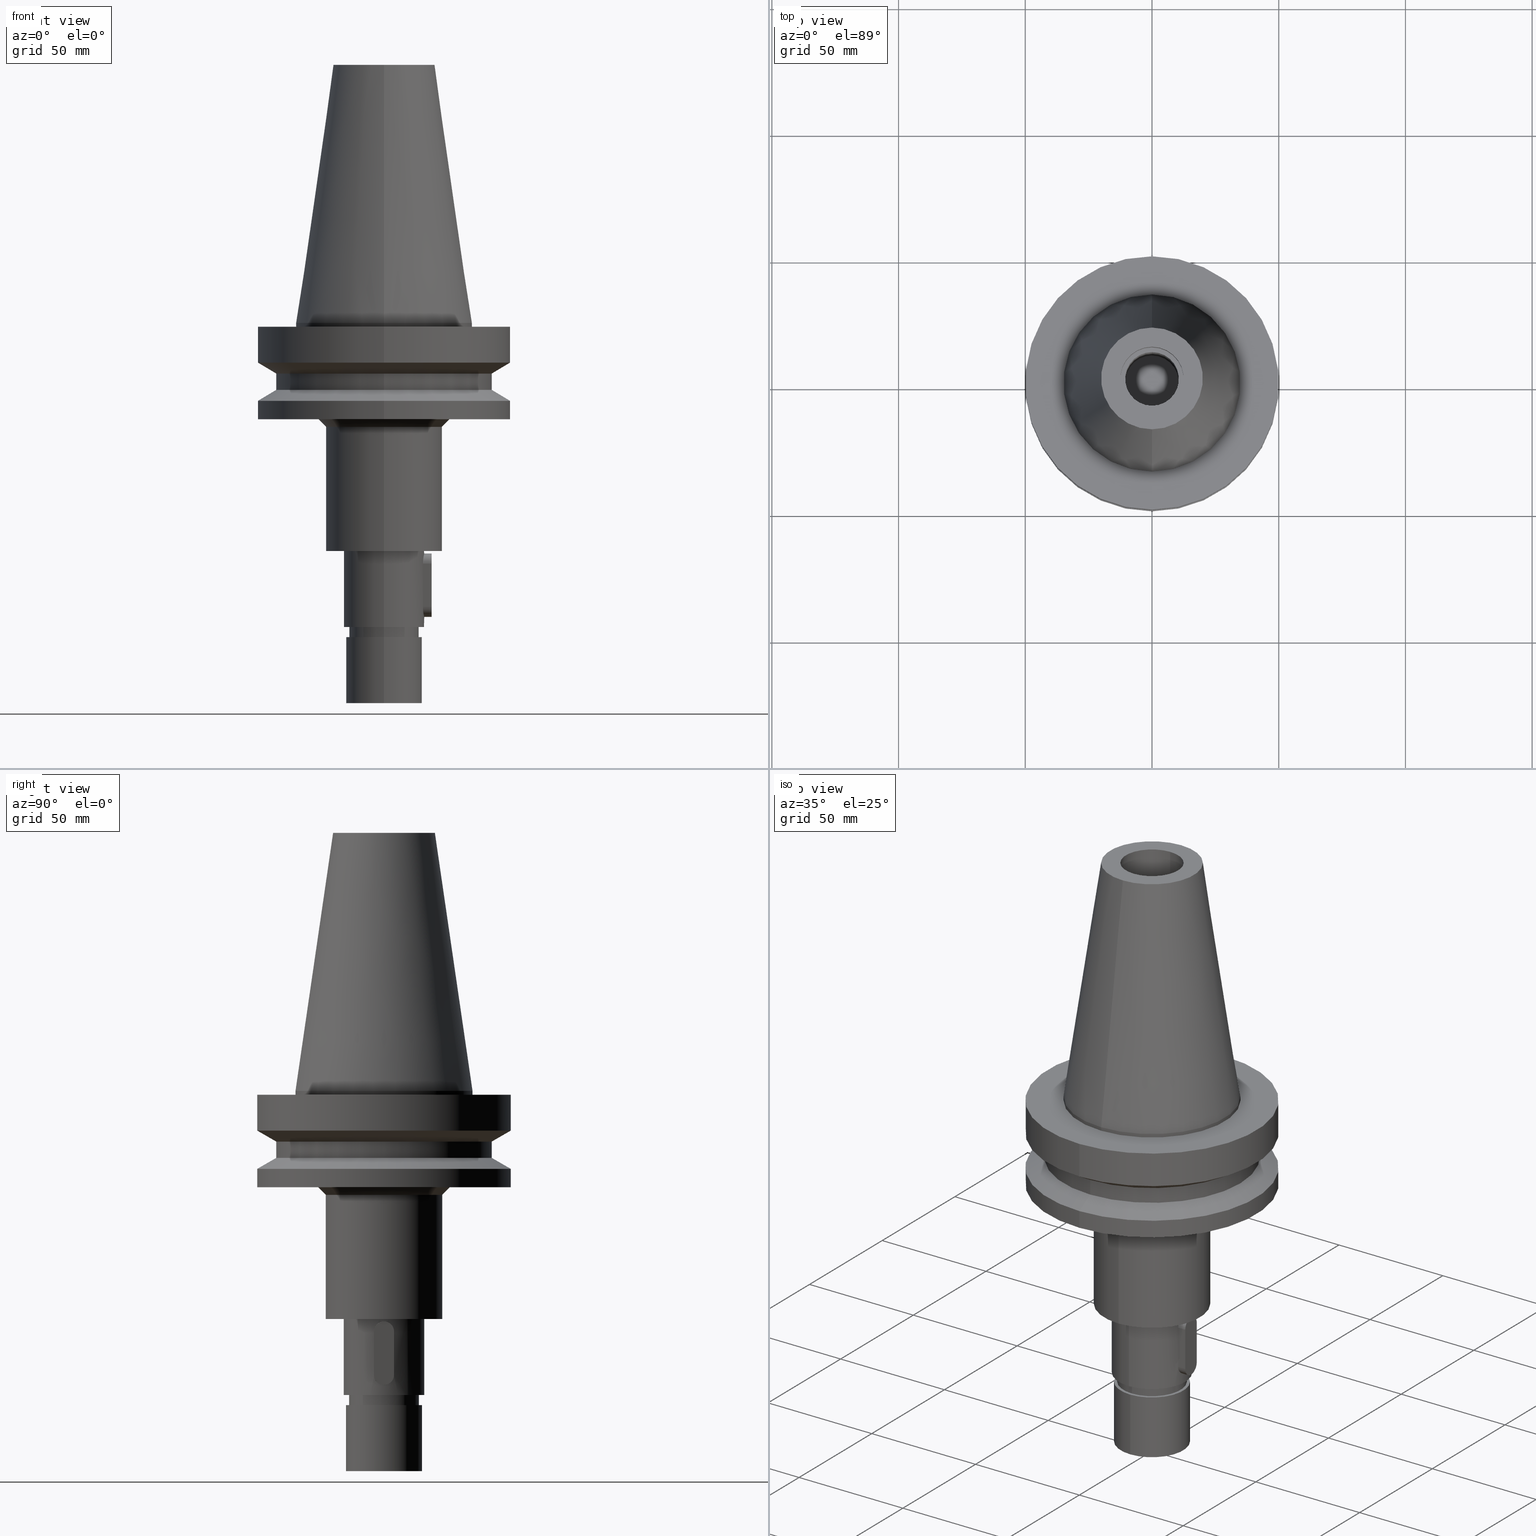
[diagram: canonical four-view strip — front | top / right | iso, engineering-drawing reading convention]
A machine part, canonical four-view strip (front | top / right | iso — engineering-drawing reading convention). The complete STEP part file that produces these views, byte-faithful:
ISO-10303-21;
HEADER;
FILE_DESCRIPTION((''),'2;1');
FILE_NAME('BBT50-SCA31_75-90','2018-09-05T',('ykawabe'),(''),
'CREO PARAMETRIC BY PTC INC, 2016380','CREO PARAMETRIC BY PTC INC, 2016380','');
FILE_SCHEMA(('AUTOMOTIVE_DESIGN { 1 0 10303 214 1 1 1 1 }'));
ENDSEC;
DATA;
#17=DIRECTION('',(0.E0,0.E0,1.E0));
#18=VECTOR('',#17,1.3E1);
#19=CARTESIAN_POINT('',(0.E0,1.25E1,8.88E1));
#20=LINE('',#19,#18);
#21=DRAUGHTING_PRE_DEFINED_CURVE_FONT('continuous');
#22=CURVE_STYLE('',#21,POSITIVE_LENGTH_MEASURE(2.E-2),#4);
#23=PRESENTATION_STYLE_ASSIGNMENT((#22));
#24=STYLED_ITEM('',(#23),#20);
#25=DIRECTION('',(0.E0,0.E0,1.E0));
#26=VECTOR('',#25,1.3E1);
#27=CARTESIAN_POINT('',(0.E0,-1.25E1,8.88E1));
#28=LINE('',#27,#26);
#29=CURVE_STYLE('',#21,POSITIVE_LENGTH_MEASURE(2.E-2),#4);
#30=PRESENTATION_STYLE_ASSIGNMENT((#29));
#31=STYLED_ITEM('',(#30),#28);
#32=CARTESIAN_POINT('',(0.E0,2.625520272692E-14,8.88E1));
#33=DIRECTION('',(0.E0,0.E0,-1.E0));
#34=DIRECTION('',(0.E0,-1.E0,0.E0));
#35=AXIS2_PLACEMENT_3D('',#32,#33,#34);
#37=CURVE_STYLE('',#21,POSITIVE_LENGTH_MEASURE(2.E-2),#4);
#38=PRESENTATION_STYLE_ASSIGNMENT((#37));
#39=STYLED_ITEM('',(#38),#36);
#40=CARTESIAN_POINT('',(0.E0,2.625520272692E-14,8.88E1));
#41=DIRECTION('',(0.E0,0.E0,-1.E0));
#42=DIRECTION('',(0.E0,1.E0,0.E0));
#43=AXIS2_PLACEMENT_3D('',#40,#41,#42);
#45=CURVE_STYLE('',#21,POSITIVE_LENGTH_MEASURE(2.E-2),#4);
#46=PRESENTATION_STYLE_ASSIGNMENT((#45));
#47=STYLED_ITEM('',(#46),#44);
#48=CARTESIAN_POINT('',(0.E0,2.625520272692E-14,8.88E1));
#49=DIRECTION('',(0.E0,0.E0,1.E0));
#50=DIRECTION('',(0.E0,-1.E0,0.E0));
#51=AXIS2_PLACEMENT_3D('',#48,#49,#50);
#53=CURVE_STYLE('',#21,POSITIVE_LENGTH_MEASURE(2.E-2),#4);
#54=PRESENTATION_STYLE_ASSIGNMENT((#53));
#55=STYLED_ITEM('',(#54),#52);
#56=CARTESIAN_POINT('',(0.E0,2.625520272692E-14,8.88E1));
#57=DIRECTION('',(0.E0,0.E0,1.E0));
#58=DIRECTION('',(0.E0,1.E0,0.E0));
#59=AXIS2_PLACEMENT_3D('',#56,#57,#58);
#61=CURVE_STYLE('',#21,POSITIVE_LENGTH_MEASURE(2.E-2),#4);
#62=PRESENTATION_STYLE_ASSIGNMENT((#61));
#63=STYLED_ITEM('',(#62),#60);
#64=DIRECTION('',(0.E0,0.E0,1.E0));
#65=VECTOR('',#64,7.7E1);
#66=CARTESIAN_POINT('',(0.E0,1.06E1,1.18E1));
#67=LINE('',#66,#65);
#68=CURVE_STYLE('',#21,POSITIVE_LENGTH_MEASURE(2.E-2),#4);
#69=PRESENTATION_STYLE_ASSIGNMENT((#68));
#70=STYLED_ITEM('',(#69),#67);
#71=DIRECTION('',(0.E0,0.E0,1.E0));
#72=VECTOR('',#71,7.7E1);
#73=CARTESIAN_POINT('',(0.E0,-1.06E1,1.18E1));
#74=LINE('',#73,#72);
#75=CURVE_STYLE('',#21,POSITIVE_LENGTH_MEASURE(2.E-2),#4);
#76=PRESENTATION_STYLE_ASSIGNMENT((#75));
#77=STYLED_ITEM('',(#76),#74);
#78=CARTESIAN_POINT('',(0.E0,2.625520272692E-14,1.18E1));
#79=DIRECTION('',(0.E0,0.E0,-1.E0));
#80=DIRECTION('',(0.E0,-1.E0,0.E0));
#81=AXIS2_PLACEMENT_3D('',#78,#79,#80);
#83=CURVE_STYLE('',#21,POSITIVE_LENGTH_MEASURE(2.E-2),#4);
#84=PRESENTATION_STYLE_ASSIGNMENT((#83));
#85=STYLED_ITEM('',(#84),#82);
#86=CARTESIAN_POINT('',(0.E0,2.625520272692E-14,1.18E1));
#87=DIRECTION('',(0.E0,0.E0,-1.E0));
#88=DIRECTION('',(0.E0,1.E0,0.E0));
#89=AXIS2_PLACEMENT_3D('',#86,#87,#88);
#91=CURVE_STYLE('',#21,POSITIVE_LENGTH_MEASURE(2.E-2),#4);
#92=PRESENTATION_STYLE_ASSIGNMENT((#91));
#93=STYLED_ITEM('',(#92),#90);
#94=CARTESIAN_POINT('',(0.E0,1.847992019913E-14,1.018E2));
#95=DIRECTION('',(0.E0,0.E0,-1.E0));
#96=DIRECTION('',(0.E0,1.E0,0.E0));
#97=AXIS2_PLACEMENT_3D('',#94,#95,#96);
#99=CURVE_STYLE('',#21,POSITIVE_LENGTH_MEASURE(2.E-2),#4);
#100=PRESENTATION_STYLE_ASSIGNMENT((#99));
#101=STYLED_ITEM('',(#100),#98);
#102=CARTESIAN_POINT('',(0.E0,1.847992019913E-14,1.018E2));
#103=DIRECTION('',(0.E0,0.E0,-1.E0));
#104=DIRECTION('',(0.E0,-1.E0,0.E0));
#105=AXIS2_PLACEMENT_3D('',#102,#103,#104);
#107=CURVE_STYLE('',#21,POSITIVE_LENGTH_MEASURE(2.E-2),#4);
#108=PRESENTATION_STYLE_ASSIGNMENT((#107));
#109=STYLED_ITEM('',(#108),#106);
#110=CARTESIAN_POINT('',(0.E0,2.625520272692E-14,1.018E2));
#111=DIRECTION('',(0.E0,0.E0,1.E0));
#112=DIRECTION('',(0.E0,1.E0,0.E0));
#113=AXIS2_PLACEMENT_3D('',#110,#111,#112);
#115=CURVE_STYLE('',#21,POSITIVE_LENGTH_MEASURE(2.E-2),#4);
#116=PRESENTATION_STYLE_ASSIGNMENT((#115));
#117=STYLED_ITEM('',(#116),#114);
#118=CARTESIAN_POINT('',(0.E0,2.625520272692E-14,1.018E2));
#119=DIRECTION('',(0.E0,0.E0,1.E0));
#120=DIRECTION('',(0.E0,-1.E0,0.E0));
#121=AXIS2_PLACEMENT_3D('',#118,#119,#120);
#123=CURVE_STYLE('',#21,POSITIVE_LENGTH_MEASURE(2.E-2),#4);
#124=PRESENTATION_STYLE_ASSIGNMENT((#123));
#125=STYLED_ITEM('',(#124),#122);
#126=DIRECTION('',(0.E0,1.443043893539E-1,-9.895333461856E-1));
#127=VECTOR('',#126,1.028767755957E2);
#128=CARTESIAN_POINT('',(0.E0,2.007942971896E1,1.018E2));
#129=LINE('',#128,#127);
#130=CURVE_STYLE('',#21,POSITIVE_LENGTH_MEASURE(2.E-2),#4);
#131=PRESENTATION_STYLE_ASSIGNMENT((#130));
#132=STYLED_ITEM('',(#131),#129);
#133=CARTESIAN_POINT('',(0.E0,1.847992019913E-14,3.979039320257E-13));
#134=DIRECTION('',(0.E0,0.E0,-1.E0));
#135=DIRECTION('',(0.E0,1.E0,0.E0));
#136=AXIS2_PLACEMENT_3D('',#133,#134,#135);
#138=CURVE_STYLE('',#21,POSITIVE_LENGTH_MEASURE(2.E-2),#4);
#139=PRESENTATION_STYLE_ASSIGNMENT((#138));
#140=STYLED_ITEM('',(#139),#137);
#141=DIRECTION('',(0.E0,-1.443043893539E-1,-9.895333461856E-1));
#142=VECTOR('',#141,1.028767755957E2);
#143=CARTESIAN_POINT('',(0.E0,-2.007942971896E1,1.018E2));
#144=LINE('',#143,#142);
#145=CURVE_STYLE('',#21,POSITIVE_LENGTH_MEASURE(2.E-2),#4);
#146=PRESENTATION_STYLE_ASSIGNMENT((#145));
#147=STYLED_ITEM('',(#146),#144);
#148=CARTESIAN_POINT('',(0.E0,1.847992019913E-14,3.979039320257E-13));
#149=DIRECTION('',(0.E0,0.E0,-1.E0));
#150=DIRECTION('',(0.E0,-1.E0,0.E0));
#151=AXIS2_PLACEMENT_3D('',#148,#149,#150);
#153=CURVE_STYLE('',#21,POSITIVE_LENGTH_MEASURE(2.E-2),#4);
#154=PRESENTATION_STYLE_ASSIGNMENT((#153));
#155=STYLED_ITEM('',(#154),#152);
#156=DIRECTION('',(0.E0,4.215886898842E-13,-1.E0));
#157=VECTOR('',#156,1.5E0);
#158=CARTESIAN_POINT('',(0.E0,-3.4925E1,4.831690603169E-13));
#159=LINE('',#158,#157);
#160=CURVE_STYLE('',#21,POSITIVE_LENGTH_MEASURE(2.E-2),#4);
#161=PRESENTATION_STYLE_ASSIGNMENT((#160));
#162=STYLED_ITEM('',(#161),#159);
#163=DIRECTION('',(0.E0,-4.263256414559E-13,-1.E0));
#164=VECTOR('',#163,1.5E0);
#165=CARTESIAN_POINT('',(0.E0,3.4925E1,4.831690603169E-13));
#166=LINE('',#165,#164);
#167=CURVE_STYLE('',#21,POSITIVE_LENGTH_MEASURE(2.E-2),#4);
#168=PRESENTATION_STYLE_ASSIGNMENT((#167));
#169=STYLED_ITEM('',(#168),#166);
#170=CARTESIAN_POINT('',(0.E0,2.625520272692E-14,-1.5E0));
#171=DIRECTION('',(0.E0,0.E0,-1.E0));
#172=DIRECTION('',(0.E0,1.E0,0.E0));
#173=AXIS2_PLACEMENT_3D('',#170,#171,#172);
#175=CURVE_STYLE('',#21,POSITIVE_LENGTH_MEASURE(2.E-2),#4);
#176=PRESENTATION_STYLE_ASSIGNMENT((#175));
#177=STYLED_ITEM('',(#176),#174);
#178=CARTESIAN_POINT('',(0.E0,2.625520272692E-14,-1.5E0));
#179=DIRECTION('',(0.E0,0.E0,-1.E0));
#180=DIRECTION('',(0.E0,-1.E0,0.E0));
#181=AXIS2_PLACEMENT_3D('',#178,#179,#180);
#183=CURVE_STYLE('',#21,POSITIVE_LENGTH_MEASURE(2.E-2),#4);
#184=PRESENTATION_STYLE_ASSIGNMENT((#183));
#185=STYLED_ITEM('',(#184),#182);
#186=CARTESIAN_POINT('',(0.E0,2.625520272692E-14,-1.5E0));
#187=DIRECTION('',(0.E0,0.E0,1.E0));
#188=DIRECTION('',(0.E0,1.E0,0.E0));
#189=AXIS2_PLACEMENT_3D('',#186,#187,#188);
#191=CURVE_STYLE('',#21,POSITIVE_LENGTH_MEASURE(2.E-2),#4);
#192=PRESENTATION_STYLE_ASSIGNMENT((#191));
#193=STYLED_ITEM('',(#192),#190);
#194=CARTESIAN_POINT('',(0.E0,2.625520272692E-14,-1.5E0));
#195=DIRECTION('',(0.E0,0.E0,1.E0));
#196=DIRECTION('',(0.E0,-1.E0,0.E0));
#197=AXIS2_PLACEMENT_3D('',#194,#195,#196);
#199=CURVE_STYLE('',#21,POSITIVE_LENGTH_MEASURE(2.E-2),#4);
#200=PRESENTATION_STYLE_ASSIGNMENT((#199));
#201=STYLED_ITEM('',(#200),#198);
#202=DIRECTION('',(0.E0,-1.605441053570E-14,-1.E0));
#203=VECTOR('',#202,1.416269223573E1);
#204=CARTESIAN_POINT('',(0.E0,5.E1,-1.5E0));
#205=LINE('',#204,#203);
#206=CURVE_STYLE('',#21,POSITIVE_LENGTH_MEASURE(2.E-2),#4);
#207=PRESENTATION_STYLE_ASSIGNMENT((#206));
#208=STYLED_ITEM('',(#207),#205);
#209=DIRECTION('',(0.E0,1.655611086494E-14,-1.E0));
#210=VECTOR('',#209,1.416269223573E1);
#211=CARTESIAN_POINT('',(0.E0,-5.E1,-1.5E0));
#212=LINE('',#211,#210);
#213=CURVE_STYLE('',#21,POSITIVE_LENGTH_MEASURE(2.E-2),#4);
#214=PRESENTATION_STYLE_ASSIGNMENT((#213));
#215=STYLED_ITEM('',(#214),#212);
#216=CARTESIAN_POINT('',(0.E0,1.006319759054E-14,-1.566269223573E1));
#217=DIRECTION('',(0.E0,0.E0,1.E0));
#218=DIRECTION('',(0.E0,1.E0,0.E0));
#219=AXIS2_PLACEMENT_3D('',#216,#217,#218);
#221=CURVE_STYLE('',#21,POSITIVE_LENGTH_MEASURE(2.E-2),#4);
#222=PRESENTATION_STYLE_ASSIGNMENT((#221));
#223=STYLED_ITEM('',(#222),#220);
#224=DIRECTION('',(0.E0,8.660254037845E-1,-4.999999999999E-1));
#225=VECTOR('',#224,8.660254037843E0);
#226=CARTESIAN_POINT('',(0.E0,-5.E1,-1.566269223573E1));
#227=LINE('',#226,#225);
#228=CURVE_STYLE('',#21,POSITIVE_LENGTH_MEASURE(2.E-2),#4);
#229=PRESENTATION_STYLE_ASSIGNMENT((#228));
#230=STYLED_ITEM('',(#229),#227);
#231=CARTESIAN_POINT('',(0.E0,1.006319759054E-14,-1.999281925465E1));
#232=DIRECTION('',(0.E0,0.E0,-1.E0));
#233=DIRECTION('',(0.E0,-1.E0,0.E0));
#234=AXIS2_PLACEMENT_3D('',#231,#232,#233);
#236=CURVE_STYLE('',#21,POSITIVE_LENGTH_MEASURE(2.E-2),#4);
#237=PRESENTATION_STYLE_ASSIGNMENT((#236));
#238=STYLED_ITEM('',(#237),#235);
#239=DIRECTION('',(0.E0,-8.660254037845E-1,-4.999999999999E-1));
#240=VECTOR('',#239,8.660254037843E0);
#241=CARTESIAN_POINT('',(0.E0,5.E1,-1.566269223573E1));
#242=LINE('',#241,#240);
#243=CURVE_STYLE('',#21,POSITIVE_LENGTH_MEASURE(2.E-2),#4);
#244=PRESENTATION_STYLE_ASSIGNMENT((#243));
#245=STYLED_ITEM('',(#244),#242);
#246=CARTESIAN_POINT('',(0.E0,1.006319759054E-14,-1.999281925465E1));
#247=DIRECTION('',(0.E0,0.E0,-1.E0));
#248=DIRECTION('',(0.E0,1.E0,0.E0));
#249=AXIS2_PLACEMENT_3D('',#246,#247,#248);
#251=CURVE_STYLE('',#21,POSITIVE_LENGTH_MEASURE(2.E-2),#4);
#252=PRESENTATION_STYLE_ASSIGNMENT((#251));
#253=STYLED_ITEM('',(#252),#250);
#254=CARTESIAN_POINT('',(0.E0,1.006319759054E-14,-1.566269223573E1));
#255=DIRECTION('',(0.E0,0.E0,1.E0));
#256=DIRECTION('',(0.E0,-1.E0,0.E0));
#257=AXIS2_PLACEMENT_3D('',#254,#255,#256);
#259=CURVE_STYLE('',#21,POSITIVE_LENGTH_MEASURE(2.E-2),#4);
#260=PRESENTATION_STYLE_ASSIGNMENT((#259));
#261=STYLED_ITEM('',(#260),#258);
#262=DIRECTION('',(0.E0,0.E0,-1.E0));
#263=VECTOR('',#262,6.414361490699E0);
#264=CARTESIAN_POINT('',(0.E0,4.25E1,-1.999281925465E1));
#265=LINE('',#264,#263);
#266=CURVE_STYLE('',#21,POSITIVE_LENGTH_MEASURE(2.E-2),#4);
#267=PRESENTATION_STYLE_ASSIGNMENT((#266));
#268=STYLED_ITEM('',(#267),#265);
#269=DIRECTION('',(0.E0,0.E0,-1.E0));
#270=VECTOR('',#269,6.414361490699E0);
#271=CARTESIAN_POINT('',(0.E0,-4.25E1,-1.999281925465E1));
#272=LINE('',#271,#270);
#273=CURVE_STYLE('',#21,POSITIVE_LENGTH_MEASURE(2.E-2),#4);
#274=PRESENTATION_STYLE_ASSIGNMENT((#273));
#275=STYLED_ITEM('',(#274),#272);
#276=CARTESIAN_POINT('',(0.E0,0.E0,-2.640718074535E1));
#277=DIRECTION('',(0.E0,0.E0,1.E0));
#278=DIRECTION('',(0.E0,1.E0,0.E0));
#279=AXIS2_PLACEMENT_3D('',#276,#277,#278);
#281=CURVE_STYLE('',#21,POSITIVE_LENGTH_MEASURE(2.E-2),#4);
#282=PRESENTATION_STYLE_ASSIGNMENT((#281));
#283=STYLED_ITEM('',(#282),#280);
#284=DIRECTION('',(0.E0,-8.660254037845E-1,-4.999999999999E-1));
#285=VECTOR('',#284,8.660254037843E0);
#286=CARTESIAN_POINT('',(0.E0,-4.25E1,-2.640718074535E1));
#287=LINE('',#286,#285);
#288=CURVE_STYLE('',#21,POSITIVE_LENGTH_MEASURE(2.E-2),#4);
#289=PRESENTATION_STYLE_ASSIGNMENT((#288));
#290=STYLED_ITEM('',(#289),#287);
#291=CARTESIAN_POINT('',(0.E0,0.E0,-3.073730776427E1));
#292=DIRECTION('',(0.E0,0.E0,-1.E0));
#293=DIRECTION('',(0.E0,-1.E0,0.E0));
#294=AXIS2_PLACEMENT_3D('',#291,#292,#293);
#296=CURVE_STYLE('',#21,POSITIVE_LENGTH_MEASURE(2.E-2),#4);
#297=PRESENTATION_STYLE_ASSIGNMENT((#296));
#298=STYLED_ITEM('',(#297),#295);
#299=DIRECTION('',(0.E0,8.660254037845E-1,-4.999999999999E-1));
#300=VECTOR('',#299,8.660254037843E0);
#301=CARTESIAN_POINT('',(0.E0,4.25E1,-2.640718074535E1));
#302=LINE('',#301,#300);
#303=CURVE_STYLE('',#21,POSITIVE_LENGTH_MEASURE(2.E-2),#4);
#304=PRESENTATION_STYLE_ASSIGNMENT((#303));
#305=STYLED_ITEM('',(#304),#302);
#306=CARTESIAN_POINT('',(0.E0,0.E0,-3.073730776427E1));
#307=DIRECTION('',(0.E0,0.E0,-1.E0));
#308=DIRECTION('',(0.E0,1.E0,0.E0));
#309=AXIS2_PLACEMENT_3D('',#306,#307,#308);
#311=CURVE_STYLE('',#21,POSITIVE_LENGTH_MEASURE(2.E-2),#4);
#312=PRESENTATION_STYLE_ASSIGNMENT((#311));
#313=STYLED_ITEM('',(#312),#310);
#314=CARTESIAN_POINT('',(0.E0,0.E0,-2.640718074535E1));
#315=DIRECTION('',(0.E0,0.E0,1.E0));
#316=DIRECTION('',(0.E0,-1.E0,0.E0));
#317=AXIS2_PLACEMENT_3D('',#314,#315,#316);
#319=CURVE_STYLE('',#21,POSITIVE_LENGTH_MEASURE(2.E-2),#4);
#320=PRESENTATION_STYLE_ASSIGNMENT((#319));
#321=STYLED_ITEM('',(#320),#318);
#322=DIRECTION('',(0.E0,3.130707843087E-14,-1.E0));
#323=VECTOR('',#322,7.262692235730E0);
#324=CARTESIAN_POINT('',(0.E0,5.E1,-3.073730776427E1));
#325=LINE('',#324,#323);
#326=CURVE_STYLE('',#21,POSITIVE_LENGTH_MEASURE(2.E-2),#4);
#327=PRESENTATION_STYLE_ASSIGNMENT((#326));
#328=STYLED_ITEM('',(#327),#325);
#329=DIRECTION('',(0.E0,-3.032873222990E-14,-1.E0));
#330=VECTOR('',#329,7.262692235730E0);
#331=CARTESIAN_POINT('',(0.E0,-5.E1,-3.073730776427E1));
#332=LINE('',#331,#330);
#333=CURVE_STYLE('',#21,POSITIVE_LENGTH_MEASURE(2.E-2),#4);
#334=PRESENTATION_STYLE_ASSIGNMENT((#333));
#335=STYLED_ITEM('',(#334),#332);
#336=CARTESIAN_POINT('',(0.E0,2.625520272692E-14,-3.8E1));
#337=DIRECTION('',(0.E0,0.E0,1.E0));
#338=DIRECTION('',(0.E0,1.E0,0.E0));
#339=AXIS2_PLACEMENT_3D('',#336,#337,#338);
#341=CURVE_STYLE('',#21,POSITIVE_LENGTH_MEASURE(2.E-2),#4);
#342=PRESENTATION_STYLE_ASSIGNMENT((#341));
#343=STYLED_ITEM('',(#342),#340);
#344=CARTESIAN_POINT('',(0.E0,2.625520272692E-14,-3.8E1));
#345=DIRECTION('',(0.E0,0.E0,1.E0));
#346=DIRECTION('',(0.E0,-1.E0,0.E0));
#347=AXIS2_PLACEMENT_3D('',#344,#345,#346);
#349=CURVE_STYLE('',#21,POSITIVE_LENGTH_MEASURE(2.E-2),#4);
#350=PRESENTATION_STYLE_ASSIGNMENT((#349));
#351=STYLED_ITEM('',(#350),#348);
#352=CARTESIAN_POINT('',(0.E0,0.E0,-3.8E1));
#353=DIRECTION('',(0.E0,0.E0,-1.E0));
#354=DIRECTION('',(0.E0,1.E0,0.E0));
#355=AXIS2_PLACEMENT_3D('',#352,#353,#354);
#357=CURVE_STYLE('',#21,POSITIVE_LENGTH_MEASURE(2.E-2),#4);
#358=PRESENTATION_STYLE_ASSIGNMENT((#357));
#359=STYLED_ITEM('',(#358),#356);
#360=CARTESIAN_POINT('',(0.E0,0.E0,-3.8E1));
#361=DIRECTION('',(0.E0,0.E0,-1.E0));
#362=DIRECTION('',(0.E0,-1.E0,0.E0));
#363=AXIS2_PLACEMENT_3D('',#360,#361,#362);
#365=CURVE_STYLE('',#21,POSITIVE_LENGTH_MEASURE(2.E-2),#4);
#366=PRESENTATION_STYLE_ASSIGNMENT((#365));
#367=STYLED_ITEM('',(#366),#364);
#368=DIRECTION('',(0.E0,-7.071067811865E-1,-7.071067811865E-1));
#369=VECTOR('',#368,4.242640687119E0);
#370=CARTESIAN_POINT('',(0.E0,2.6E1,-3.8E1));
#371=LINE('',#370,#369);
#372=CURVE_STYLE('',#21,POSITIVE_LENGTH_MEASURE(2.E-2),#4);
#373=PRESENTATION_STYLE_ASSIGNMENT((#372));
#374=STYLED_ITEM('',(#373),#371);
#375=CARTESIAN_POINT('',(0.E0,0.E0,-4.1E1));
#376=DIRECTION('',(0.E0,0.E0,-1.E0));
#377=DIRECTION('',(0.E0,1.E0,0.E0));
#378=AXIS2_PLACEMENT_3D('',#375,#376,#377);
#380=CURVE_STYLE('',#21,POSITIVE_LENGTH_MEASURE(2.E-2),#4);
#381=PRESENTATION_STYLE_ASSIGNMENT((#380));
#382=STYLED_ITEM('',(#381),#379);
#383=DIRECTION('',(0.E0,7.071067811865E-1,-7.071067811865E-1));
#384=VECTOR('',#383,4.242640687119E0);
#385=CARTESIAN_POINT('',(0.E0,-2.6E1,-3.8E1));
#386=LINE('',#385,#384);
#387=CURVE_STYLE('',#21,POSITIVE_LENGTH_MEASURE(2.E-2),#4);
#388=PRESENTATION_STYLE_ASSIGNMENT((#387));
#389=STYLED_ITEM('',(#388),#386);
#390=CARTESIAN_POINT('',(0.E0,0.E0,-4.1E1));
#391=DIRECTION('',(0.E0,0.E0,-1.E0));
#392=DIRECTION('',(0.E0,-1.E0,0.E0));
#393=AXIS2_PLACEMENT_3D('',#390,#391,#392);
#395=CURVE_STYLE('',#21,POSITIVE_LENGTH_MEASURE(2.E-2),#4);
#396=PRESENTATION_STYLE_ASSIGNMENT((#395));
#397=STYLED_ITEM('',(#396),#394);
#398=DIRECTION('',(0.E0,0.E0,-1.E0));
#399=VECTOR('',#398,4.9E1);
#400=CARTESIAN_POINT('',(0.E0,-2.3E1,-4.1E1));
#401=LINE('',#400,#399);
#402=CURVE_STYLE('',#21,POSITIVE_LENGTH_MEASURE(2.E-2),#4);
#403=PRESENTATION_STYLE_ASSIGNMENT((#402));
#404=STYLED_ITEM('',(#403),#401);
#405=DIRECTION('',(0.E0,0.E0,-1.E0));
#406=VECTOR('',#405,4.9E1);
#407=CARTESIAN_POINT('',(0.E0,2.3E1,-4.1E1));
#408=LINE('',#407,#406);
#409=CURVE_STYLE('',#21,POSITIVE_LENGTH_MEASURE(2.E-2),#4);
#410=PRESENTATION_STYLE_ASSIGNMENT((#409));
#411=STYLED_ITEM('',(#410),#408);
#412=CARTESIAN_POINT('',(0.E0,2.625520272692E-14,-9.E1));
#413=DIRECTION('',(0.E0,0.E0,1.E0));
#414=DIRECTION('',(0.E0,1.E0,0.E0));
#415=AXIS2_PLACEMENT_3D('',#412,#413,#414);
#417=CURVE_STYLE('',#21,POSITIVE_LENGTH_MEASURE(2.E-2),#4);
#418=PRESENTATION_STYLE_ASSIGNMENT((#417));
#419=STYLED_ITEM('',(#418),#416);
#420=CARTESIAN_POINT('',(0.E0,2.625520272692E-14,-9.E1));
#421=DIRECTION('',(0.E0,0.E0,1.E0));
#422=DIRECTION('',(0.E0,-1.E0,0.E0));
#423=AXIS2_PLACEMENT_3D('',#420,#421,#422);
#425=CURVE_STYLE('',#21,POSITIVE_LENGTH_MEASURE(2.E-2),#4);
#426=PRESENTATION_STYLE_ASSIGNMENT((#425));
#427=STYLED_ITEM('',(#426),#424);
#428=CARTESIAN_POINT('',(0.E0,2.625520272692E-14,-9.E1));
#429=DIRECTION('',(0.E0,0.E0,-1.E0));
#430=DIRECTION('',(0.E0,1.E0,0.E0));
#431=AXIS2_PLACEMENT_3D('',#428,#429,#430);
#433=CURVE_STYLE('',#21,POSITIVE_LENGTH_MEASURE(2.E-2),#4);
#434=PRESENTATION_STYLE_ASSIGNMENT((#433));
#435=STYLED_ITEM('',(#434),#432);
#436=CARTESIAN_POINT('',(0.E0,2.625520272692E-14,-9.E1));
#437=DIRECTION('',(0.E0,0.E0,-1.E0));
#438=DIRECTION('',(0.E0,-1.E0,0.E0));
#439=AXIS2_PLACEMENT_3D('',#436,#437,#438);
#441=CURVE_STYLE('',#21,POSITIVE_LENGTH_MEASURE(2.E-2),#4);
#442=PRESENTATION_STYLE_ASSIGNMENT((#441));
#443=STYLED_ITEM('',(#442),#440);
#444=DIRECTION('',(0.E0,0.E0,-1.E0));
#445=VECTOR('',#444,3.E1);
#446=CARTESIAN_POINT('',(0.E0,1.5875E1,-9.E1));
#447=LINE('',#446,#445);
#448=CURVE_STYLE('',#21,POSITIVE_LENGTH_MEASURE(2.E-2),#4);
#449=PRESENTATION_STYLE_ASSIGNMENT((#448));
#450=STYLED_ITEM('',(#449),#447);
#451=DIRECTION('',(0.E0,0.E0,-1.E0));
#452=VECTOR('',#451,1.708E1);
#453=CARTESIAN_POINT('',(1.537315923940E1,-3.96E0,-9.496E1));
#454=LINE('',#453,#452);
#455=CURVE_STYLE('',#21,POSITIVE_LENGTH_MEASURE(2.E-2),#4);
#456=PRESENTATION_STYLE_ASSIGNMENT((#455));
#457=STYLED_ITEM('',(#456),#454);
#458=DIRECTION('',(0.E0,0.E0,1.E0));
#459=VECTOR('',#458,1.708E1);
#460=CARTESIAN_POINT('',(1.537315923940E1,3.96E0,-1.1204E2));
#461=LINE('',#460,#459);
#462=CURVE_STYLE('',#21,POSITIVE_LENGTH_MEASURE(2.E-2),#4);
#463=PRESENTATION_STYLE_ASSIGNMENT((#462));
#464=STYLED_ITEM('',(#463),#461);
#465=DIRECTION('',(0.E0,0.E0,-1.E0));
#466=VECTOR('',#465,3.E1);
#467=CARTESIAN_POINT('',(0.E0,-1.5875E1,-9.E1));
#468=LINE('',#467,#466);
#469=CURVE_STYLE('',#21,POSITIVE_LENGTH_MEASURE(2.E-2),#4);
#470=PRESENTATION_STYLE_ASSIGNMENT((#469));
#471=STYLED_ITEM('',(#470),#468);
#472=CARTESIAN_POINT('',(0.E0,2.625520272692E-14,-1.2E2));
#473=DIRECTION('',(0.E0,0.E0,1.E0));
#474=DIRECTION('',(0.E0,1.E0,0.E0));
#475=AXIS2_PLACEMENT_3D('',#472,#473,#474);
#477=CURVE_STYLE('',#21,POSITIVE_LENGTH_MEASURE(2.E-2),#4);
#478=PRESENTATION_STYLE_ASSIGNMENT((#477));
#479=STYLED_ITEM('',(#478),#476);
#480=CARTESIAN_POINT('',(0.E0,2.625520272692E-14,-1.2E2));
#481=DIRECTION('',(0.E0,0.E0,1.E0));
#482=DIRECTION('',(0.E0,-1.E0,0.E0));
#483=AXIS2_PLACEMENT_3D('',#480,#481,#482);
#485=CURVE_STYLE('',#21,POSITIVE_LENGTH_MEASURE(2.E-2),#4);
#486=PRESENTATION_STYLE_ASSIGNMENT((#485));
#487=STYLED_ITEM('',(#486),#484);
#488=CARTESIAN_POINT('',(0.E0,2.625520272692E-14,-1.2E2));
#489=DIRECTION('',(0.E0,0.E0,-1.E0));
#490=DIRECTION('',(0.E0,1.E0,0.E0));
#491=AXIS2_PLACEMENT_3D('',#488,#489,#490);
#493=CURVE_STYLE('',#21,POSITIVE_LENGTH_MEASURE(2.E-2),#4);
#494=PRESENTATION_STYLE_ASSIGNMENT((#493));
#495=STYLED_ITEM('',(#494),#492);
#496=CARTESIAN_POINT('',(0.E0,2.625520272692E-14,-1.2E2));
#497=DIRECTION('',(0.E0,0.E0,-1.E0));
#498=DIRECTION('',(0.E0,-1.E0,0.E0));
#499=AXIS2_PLACEMENT_3D('',#496,#497,#498);
#501=CURVE_STYLE('',#21,POSITIVE_LENGTH_MEASURE(2.E-2),#4);
#502=PRESENTATION_STYLE_ASSIGNMENT((#501));
#503=STYLED_ITEM('',(#502),#500);
#504=DIRECTION('',(0.E0,0.E0,-1.E0));
#505=VECTOR('',#504,4.E0);
#506=CARTESIAN_POINT('',(0.E0,1.375E1,-1.2E2));
#507=LINE('',#506,#505);
#508=CURVE_STYLE('',#21,POSITIVE_LENGTH_MEASURE(2.E-2),#4);
#509=PRESENTATION_STYLE_ASSIGNMENT((#508));
#510=STYLED_ITEM('',(#509),#507);
#511=DIRECTION('',(0.E0,0.E0,-1.E0));
#512=VECTOR('',#511,4.E0);
#513=CARTESIAN_POINT('',(0.E0,-1.375E1,-1.2E2));
#514=LINE('',#513,#512);
#515=CURVE_STYLE('',#21,POSITIVE_LENGTH_MEASURE(2.E-2),#4);
#516=PRESENTATION_STYLE_ASSIGNMENT((#515));
#517=STYLED_ITEM('',(#516),#514);
#518=CARTESIAN_POINT('',(0.E0,2.625520272692E-14,-1.24E2));
#519=DIRECTION('',(0.E0,0.E0,-1.E0));
#520=DIRECTION('',(0.E0,1.E0,0.E0));
#521=AXIS2_PLACEMENT_3D('',#518,#519,#520);
#523=CURVE_STYLE('',#21,POSITIVE_LENGTH_MEASURE(2.E-2),#4);
#524=PRESENTATION_STYLE_ASSIGNMENT((#523));
#525=STYLED_ITEM('',(#524),#522);
#526=CARTESIAN_POINT('',(0.E0,2.625520272692E-14,-1.24E2));
#527=DIRECTION('',(0.E0,0.E0,-1.E0));
#528=DIRECTION('',(0.E0,-1.E0,0.E0));
#529=AXIS2_PLACEMENT_3D('',#526,#527,#528);
#531=CURVE_STYLE('',#21,POSITIVE_LENGTH_MEASURE(2.E-2),#4);
#532=PRESENTATION_STYLE_ASSIGNMENT((#531));
#533=STYLED_ITEM('',(#532),#530);
#534=CARTESIAN_POINT('',(0.E0,2.625520272692E-14,-1.24E2));
#535=DIRECTION('',(0.E0,0.E0,1.E0));
#536=DIRECTION('',(0.E0,1.E0,0.E0));
#537=AXIS2_PLACEMENT_3D('',#534,#535,#536);
#539=CURVE_STYLE('',#21,POSITIVE_LENGTH_MEASURE(2.E-2),#4);
#540=PRESENTATION_STYLE_ASSIGNMENT((#539));
#541=STYLED_ITEM('',(#540),#538);
#542=CARTESIAN_POINT('',(0.E0,2.625520272692E-14,-1.24E2));
#543=DIRECTION('',(0.E0,0.E0,1.E0));
#544=DIRECTION('',(0.E0,-1.E0,0.E0));
#545=AXIS2_PLACEMENT_3D('',#542,#543,#544);
#547=CURVE_STYLE('',#21,POSITIVE_LENGTH_MEASURE(2.E-2),#4);
#548=PRESENTATION_STYLE_ASSIGNMENT((#547));
#549=STYLED_ITEM('',(#548),#546);
#550=DIRECTION('',(0.E0,0.E0,-1.E0));
#551=VECTOR('',#550,2.6E1);
#552=CARTESIAN_POINT('',(0.E0,1.5E1,-1.24E2));
#553=LINE('',#552,#551);
#554=CURVE_STYLE('',#21,POSITIVE_LENGTH_MEASURE(2.E-2),#4);
#555=PRESENTATION_STYLE_ASSIGNMENT((#554));
#556=STYLED_ITEM('',(#555),#553);
#557=DIRECTION('',(0.E0,0.E0,-1.E0));
#558=VECTOR('',#557,2.6E1);
#559=CARTESIAN_POINT('',(0.E0,-1.5E1,-1.24E2));
#560=LINE('',#559,#558);
#561=CURVE_STYLE('',#21,POSITIVE_LENGTH_MEASURE(2.E-2),#4);
#562=PRESENTATION_STYLE_ASSIGNMENT((#561));
#563=STYLED_ITEM('',(#562),#560);
#564=CARTESIAN_POINT('',(0.E0,2.625520272692E-14,-1.5E2));
#565=DIRECTION('',(0.E0,0.E0,1.E0));
#566=DIRECTION('',(0.E0,1.E0,0.E0));
#567=AXIS2_PLACEMENT_3D('',#564,#565,#566);
#569=CURVE_STYLE('',#21,POSITIVE_LENGTH_MEASURE(2.E-2),#4);
#570=PRESENTATION_STYLE_ASSIGNMENT((#569));
#571=STYLED_ITEM('',(#570),#568);
#572=CARTESIAN_POINT('',(0.E0,2.625520272692E-14,-1.5E2));
#573=DIRECTION('',(0.E0,0.E0,1.E0));
#574=DIRECTION('',(0.E0,-1.E0,0.E0));
#575=AXIS2_PLACEMENT_3D('',#572,#573,#574);
#577=CURVE_STYLE('',#21,POSITIVE_LENGTH_MEASURE(2.E-2),#4);
#578=PRESENTATION_STYLE_ASSIGNMENT((#577));
#579=STYLED_ITEM('',(#578),#576);
#580=CARTESIAN_POINT('',(1.537315923940E1,-3.96E0,-9.496E1));
#581=CARTESIAN_POINT('',(1.537315923940E1,-3.96E0,-9.462352380357E1));
#582=CARTESIAN_POINT('',(1.539555181444E1,-3.874785622292E0,-9.394495245827E1));
#583=CARTESIAN_POINT('',(1.549305407745E1,-3.474795405500E0,-9.296626707213E1));
#584=CARTESIAN_POINT('',(1.562428452879E1,-2.842547205902E0,-9.213909732487E1));
#585=CARTESIAN_POINT('',(1.575530231010E1,-2.017526033292E0,-9.149836672865E1));
#586=CARTESIAN_POINT('',(1.585242501131E1,-1.033334770219E0,-9.108891059741E1));
#587=CARTESIAN_POINT('',(1.587500021593E1,-3.434372793785E-1,
-9.099999898579E1));
#588=CARTESIAN_POINT('',(1.587500021593E1,-4.152452375900E-14,
-9.099999898579E1));
#590=CURVE_STYLE('',#21,POSITIVE_LENGTH_MEASURE(2.E-2),#4);
#591=PRESENTATION_STYLE_ASSIGNMENT((#590));
#592=STYLED_ITEM('',(#591),#589);
#593=CARTESIAN_POINT('',(1.587500021593E1,-4.152452375900E-14,
-9.099999898579E1));
#594=CARTESIAN_POINT('',(1.587500021593E1,3.371925297528E-1,-9.099999898579E1));
#595=CARTESIAN_POINT('',(1.585326375415E1,1.016787831929E0,-9.108563313399E1));
#596=CARTESIAN_POINT('',(1.575813590430E1,1.994990994049E0,-9.148596055864E1));
#597=CARTESIAN_POINT('',(1.562810848437E1,2.821976212216E0,-9.211850706933E1));
#598=CARTESIAN_POINT('',(1.549591815620E1,3.462512112065E0,-9.294388727918E1));
#599=CARTESIAN_POINT('',(1.539639822432E1,3.871595765226E0,-9.392872220235E1));
#600=CARTESIAN_POINT('',(1.537315923940E1,3.96E0,-9.461741908094E1));
#601=CARTESIAN_POINT('',(1.537315923940E1,3.96E0,-9.496E1));
#603=CURVE_STYLE('',#21,POSITIVE_LENGTH_MEASURE(2.E-2),#4);
#604=PRESENTATION_STYLE_ASSIGNMENT((#603));
#605=STYLED_ITEM('',(#604),#602);
#606=DIRECTION('',(1.E0,-3.945336128697E-14,0.E0));
#607=VECTOR('',#606,3.421840760599E0);
#608=CARTESIAN_POINT('',(1.537315923940E1,3.96E0,-9.496E1));
#609=LINE('',#608,#607);
#610=CURVE_STYLE('',#21,POSITIVE_LENGTH_MEASURE(2.E-2),#4);
#611=PRESENTATION_STYLE_ASSIGNMENT((#610));
#612=STYLED_ITEM('',(#611),#609);
#613=DIRECTION('',(-1.E0,-3.776621096878E-14,0.E0));
#614=VECTOR('',#613,3.421840760599E0);
#615=CARTESIAN_POINT('',(1.8795E1,-3.96E0,-9.496E1));
#616=LINE('',#615,#614);
#617=CURVE_STYLE('',#21,POSITIVE_LENGTH_MEASURE(2.E-2),#4);
#618=PRESENTATION_STYLE_ASSIGNMENT((#617));
#619=STYLED_ITEM('',(#618),#616);
#620=CARTESIAN_POINT('',(1.537315923940E1,3.96E0,-1.1204E2));
#621=CARTESIAN_POINT('',(1.537315923940E1,3.96E0,-1.123764760788E2));
#622=CARTESIAN_POINT('',(1.539555179792E1,3.874785687172E0,-1.130550472712E2));
#623=CARTESIAN_POINT('',(1.549305404875E1,3.474795526468E0,-1.140337327295E2));
#624=CARTESIAN_POINT('',(1.562428452432E1,2.842547270085E0,-1.148609026690E2));
#625=CARTESIAN_POINT('',(1.575530234287E1,2.017525731783E0,-1.155016334174E2));
#626=CARTESIAN_POINT('',(1.585242497840E1,1.033335170924E0,-1.159110892557E2));
#627=CARTESIAN_POINT('',(1.587500021593E1,3.434374612613E-1,-1.160000010142E2));
#628=CARTESIAN_POINT('',(1.587500021593E1,2.163561266506E-14,
-1.160000010142E2));
#630=CURVE_STYLE('',#21,POSITIVE_LENGTH_MEASURE(2.E-2),#4);
#631=PRESENTATION_STYLE_ASSIGNMENT((#630));
#632=STYLED_ITEM('',(#631),#629);
#633=CARTESIAN_POINT('',(1.587500021593E1,2.163561266506E-14,
-1.160000010142E2));
#634=CARTESIAN_POINT('',(1.587500021593E1,-3.371923846116E-1,
-1.160000010142E2));
#635=CARTESIAN_POINT('',(1.585326378059E1,-1.016787523888E0,-1.159143669817E2));
#636=CARTESIAN_POINT('',(1.575813587151E1,-1.994991298113E0,-1.155140392982E2));
#637=CARTESIAN_POINT('',(1.562810846739E1,-2.821976276655E0,-1.148814928301E2));
#638=CARTESIAN_POINT('',(1.549591815591E1,-3.462512116103E0,-1.140561127043E2));
#639=CARTESIAN_POINT('',(1.539639822924E1,-3.871595744607E0,-1.130712778612E2));
#640=CARTESIAN_POINT('',(1.537315923940E1,-3.96E0,-1.123825809517E2));
#641=CARTESIAN_POINT('',(1.537315923940E1,-3.96E0,-1.1204E2));
#643=CURVE_STYLE('',#21,POSITIVE_LENGTH_MEASURE(2.E-2),#4);
#644=PRESENTATION_STYLE_ASSIGNMENT((#643));
#645=STYLED_ITEM('',(#644),#642);
#646=DIRECTION('',(1.E0,3.776621096878E-14,0.E0));
#647=VECTOR('',#646,3.421840760599E0);
#648=CARTESIAN_POINT('',(1.537315923940E1,-3.96E0,-1.1204E2));
#649=LINE('',#648,#647);
#650=CURVE_STYLE('',#21,POSITIVE_LENGTH_MEASURE(2.E-2),#4);
#651=PRESENTATION_STYLE_ASSIGNMENT((#650));
#652=STYLED_ITEM('',(#651),#649);
#653=DIRECTION('',(-1.E0,3.945336128697E-14,0.E0));
#654=VECTOR('',#653,3.421840760599E0);
#655=CARTESIAN_POINT('',(1.8795E1,3.96E0,-1.1204E2));
#656=LINE('',#655,#654);
#657=CURVE_STYLE('',#21,POSITIVE_LENGTH_MEASURE(2.E-2),#4);
#658=PRESENTATION_STYLE_ASSIGNMENT((#657));
#659=STYLED_ITEM('',(#658),#656);
#660=CARTESIAN_POINT('',(1.8795E1,0.E0,-9.496E1));
#661=DIRECTION('',(-1.E0,0.E0,0.E0));
#662=DIRECTION('',(0.E0,-1.E0,0.E0));
#663=AXIS2_PLACEMENT_3D('',#660,#661,#662);
#665=CURVE_STYLE('',#21,POSITIVE_LENGTH_MEASURE(2.E-2),#4);
#666=PRESENTATION_STYLE_ASSIGNMENT((#665));
#667=STYLED_ITEM('',(#666),#664);
#668=CARTESIAN_POINT('',(1.8795E1,0.E0,-9.496E1));
#669=DIRECTION('',(-1.E0,0.E0,0.E0));
#670=DIRECTION('',(0.E0,0.E0,1.E0));
#671=AXIS2_PLACEMENT_3D('',#668,#669,#670);
#673=CURVE_STYLE('',#21,POSITIVE_LENGTH_MEASURE(2.E-2),#4);
#674=PRESENTATION_STYLE_ASSIGNMENT((#673));
#675=STYLED_ITEM('',(#674),#672);
#676=DIRECTION('',(0.E0,0.E0,-1.E0));
#677=VECTOR('',#676,1.708E1);
#678=CARTESIAN_POINT('',(1.8795E1,3.96E0,-9.496E1));
#679=LINE('',#678,#677);
#680=CURVE_STYLE('',#21,POSITIVE_LENGTH_MEASURE(2.E-2),#4);
#681=PRESENTATION_STYLE_ASSIGNMENT((#680));
#682=STYLED_ITEM('',(#681),#679);
#683=CARTESIAN_POINT('',(1.8795E1,0.E0,-1.1204E2));
#684=DIRECTION('',(-1.E0,0.E0,0.E0));
#685=DIRECTION('',(0.E0,1.E0,0.E0));
#686=AXIS2_PLACEMENT_3D('',#683,#684,#685);
#688=CURVE_STYLE('',#21,POSITIVE_LENGTH_MEASURE(2.E-2),#4);
#689=PRESENTATION_STYLE_ASSIGNMENT((#688));
#690=STYLED_ITEM('',(#689),#687);
#691=CARTESIAN_POINT('',(1.8795E1,0.E0,-1.1204E2));
#692=DIRECTION('',(-1.E0,0.E0,0.E0));
#693=DIRECTION('',(0.E0,0.E0,-1.E0));
#694=AXIS2_PLACEMENT_3D('',#691,#692,#693);
#696=CURVE_STYLE('',#21,POSITIVE_LENGTH_MEASURE(2.E-2),#4);
#697=PRESENTATION_STYLE_ASSIGNMENT((#696));
#698=STYLED_ITEM('',(#697),#695);
#699=DIRECTION('',(0.E0,0.E0,1.E0));
#700=VECTOR('',#699,1.708E1);
#701=CARTESIAN_POINT('',(1.8795E1,-3.96E0,-1.1204E2));
#702=LINE('',#701,#700);
#703=CURVE_STYLE('',#21,POSITIVE_LENGTH_MEASURE(2.E-2),#4);
#704=PRESENTATION_STYLE_ASSIGNMENT((#703));
#705=STYLED_ITEM('',(#704),#702);
#706=CARTESIAN_POINT('',(0.E0,1.25E1,8.88E1));
#707=CARTESIAN_POINT('',(0.E0,1.25E1,1.018E2));
#708=VERTEX_POINT('',#706);
#709=VERTEX_POINT('',#707);
#710=CARTESIAN_POINT('',(0.E0,-1.25E1,1.018E2));
#711=VERTEX_POINT('',#710);
#712=CARTESIAN_POINT('',(0.E0,-1.25E1,8.88E1));
#713=VERTEX_POINT('',#712);
#714=CARTESIAN_POINT('',(0.E0,-1.06E1,8.88E1));
#715=CARTESIAN_POINT('',(0.E0,1.06E1,8.88E1));
#716=VERTEX_POINT('',#714);
#717=VERTEX_POINT('',#715);
#718=CARTESIAN_POINT('',(0.E0,1.06E1,1.18E1));
#719=VERTEX_POINT('',#718);
#720=CARTESIAN_POINT('',(0.E0,-1.06E1,1.18E1));
#721=VERTEX_POINT('',#720);
#722=CARTESIAN_POINT('',(0.E0,2.007942971896E1,1.018E2));
#723=CARTESIAN_POINT('',(0.E0,-2.007942971896E1,1.018E2));
#724=VERTEX_POINT('',#722);
#725=VERTEX_POINT('',#723);
#726=CARTESIAN_POINT('',(0.E0,3.4925E1,4.831690603169E-13));
#727=VERTEX_POINT('',#726);
#728=CARTESIAN_POINT('',(0.E0,-3.4925E1,3.979039320257E-13));
#729=VERTEX_POINT('',#728);
#730=CARTESIAN_POINT('',(0.E0,3.4925E1,-1.5E0));
#731=VERTEX_POINT('',#730);
#732=CARTESIAN_POINT('',(0.E0,-3.4925E1,-1.5E0));
#733=VERTEX_POINT('',#732);
#734=CARTESIAN_POINT('',(0.E0,5.E1,-1.5E0));
#735=CARTESIAN_POINT('',(0.E0,-5.E1,-1.5E0));
#736=VERTEX_POINT('',#734);
#737=VERTEX_POINT('',#735);
#738=CARTESIAN_POINT('',(0.E0,5.E1,-1.566269223573E1));
#739=VERTEX_POINT('',#738);
#740=CARTESIAN_POINT('',(1.224646799147E-14,-5.E1,-1.566269223573E1));
#741=VERTEX_POINT('',#740);
#742=CARTESIAN_POINT('',(0.E0,4.25E1,-1.999281925465E1));
#743=VERTEX_POINT('',#742);
#744=CARTESIAN_POINT('',(0.E0,-4.25E1,-1.999281925465E1));
#745=VERTEX_POINT('',#744);
#746=CARTESIAN_POINT('',(0.E0,4.25E1,-2.640718074535E1));
#747=VERTEX_POINT('',#746);
#748=CARTESIAN_POINT('',(1.040949779275E-14,-4.25E1,-2.640718074535E1));
#749=VERTEX_POINT('',#748);
#750=CARTESIAN_POINT('',(0.E0,5.E1,-3.073730776427E1));
#751=VERTEX_POINT('',#750);
#752=CARTESIAN_POINT('',(0.E0,-5.E1,-3.073730776427E1));
#753=VERTEX_POINT('',#752);
#754=CARTESIAN_POINT('',(0.E0,5.E1,-3.8E1));
#755=VERTEX_POINT('',#754);
#756=CARTESIAN_POINT('',(0.E0,-5.E1,-3.8E1));
#757=VERTEX_POINT('',#756);
#758=CARTESIAN_POINT('',(0.E0,2.6E1,-3.8E1));
#759=CARTESIAN_POINT('',(0.E0,-2.6E1,-3.8E1));
#760=VERTEX_POINT('',#758);
#761=VERTEX_POINT('',#759);
#762=CARTESIAN_POINT('',(0.E0,2.3E1,-4.1E1));
#763=VERTEX_POINT('',#762);
#764=CARTESIAN_POINT('',(0.E0,-2.3E1,-4.1E1));
#765=VERTEX_POINT('',#764);
#766=CARTESIAN_POINT('',(0.E0,2.3E1,-9.E1));
#767=VERTEX_POINT('',#766);
#768=CARTESIAN_POINT('',(0.E0,-2.3E1,-9.E1));
#769=VERTEX_POINT('',#768);
#770=CARTESIAN_POINT('',(0.E0,1.5875E1,-9.E1));
#771=CARTESIAN_POINT('',(0.E0,-1.5875E1,-9.E1));
#772=VERTEX_POINT('',#770);
#773=VERTEX_POINT('',#771);
#774=CARTESIAN_POINT('',(0.E0,1.5875E1,-1.2E2));
#775=VERTEX_POINT('',#774);
#776=CARTESIAN_POINT('',(0.E0,-1.5875E1,-1.2E2));
#777=VERTEX_POINT('',#776);
#778=VERTEX_POINT('',#593);
#779=VERTEX_POINT('',#601);
#780=VERTEX_POINT('',#580);
#781=CARTESIAN_POINT('',(1.537315923940E1,-3.96E0,-1.1204E2));
#782=VERTEX_POINT('',#781);
#783=VERTEX_POINT('',#633);
#784=VERTEX_POINT('',#620);
#785=CARTESIAN_POINT('',(0.E0,1.375E1,-1.2E2));
#786=CARTESIAN_POINT('',(0.E0,-1.375E1,-1.2E2));
#787=VERTEX_POINT('',#785);
#788=VERTEX_POINT('',#786);
#789=CARTESIAN_POINT('',(0.E0,1.375E1,-1.24E2));
#790=VERTEX_POINT('',#789);
#791=CARTESIAN_POINT('',(0.E0,-1.375E1,-1.24E2));
#792=VERTEX_POINT('',#791);
#793=CARTESIAN_POINT('',(0.E0,1.5E1,-1.24E2));
#794=CARTESIAN_POINT('',(0.E0,-1.5E1,-1.24E2));
#795=VERTEX_POINT('',#793);
#796=VERTEX_POINT('',#794);
#797=CARTESIAN_POINT('',(0.E0,1.5E1,-1.5E2));
#798=VERTEX_POINT('',#797);
#799=CARTESIAN_POINT('',(0.E0,-1.5E1,-1.5E2));
#800=VERTEX_POINT('',#799);
#801=CARTESIAN_POINT('',(1.8795E1,3.96E0,-9.496E1));
#802=VERTEX_POINT('',#801);
#803=CARTESIAN_POINT('',(1.8795E1,0.E0,-9.1E1));
#804=VERTEX_POINT('',#803);
#805=CARTESIAN_POINT('',(1.8795E1,-3.96E0,-9.496E1));
#806=VERTEX_POINT('',#805);
#807=CARTESIAN_POINT('',(1.8795E1,3.96E0,-1.1204E2));
#808=VERTEX_POINT('',#807);
#809=CARTESIAN_POINT('',(1.8795E1,-3.96E0,-1.1204E2));
#810=VERTEX_POINT('',#809);
#811=CARTESIAN_POINT('',(1.8795E1,0.E0,-1.16E2));
#812=VERTEX_POINT('',#811);
#813=CARTESIAN_POINT('',(0.E0,2.625520272692E-14,1.1439E2));
#814=DIRECTION('',(0.E0,0.E0,-1.E0));
#815=DIRECTION('',(0.E0,-1.E0,0.E0));
#816=AXIS2_PLACEMENT_3D('',#813,#814,#815);
#817=CYLINDRICAL_SURFACE('',#816,1.25E1);
#819=ORIENTED_EDGE('',*,*,#818,.T.);
#821=ORIENTED_EDGE('',*,*,#820,.F.);
#823=ORIENTED_EDGE('',*,*,#822,.F.);
#825=ORIENTED_EDGE('',*,*,#824,.F.);
#826=EDGE_LOOP('',(#819,#821,#823,#825));
#827=FACE_OUTER_BOUND('',#826,.F.);
#829=CARTESIAN_POINT('',(0.E0,2.625520272692E-14,1.1439E2));
#830=DIRECTION('',(0.E0,0.E0,-1.E0));
#831=DIRECTION('',(0.E0,-1.E0,0.E0));
#832=AXIS2_PLACEMENT_3D('',#829,#830,#831);
#833=CYLINDRICAL_SURFACE('',#832,1.25E1);
#834=ORIENTED_EDGE('',*,*,#818,.F.);
#836=ORIENTED_EDGE('',*,*,#835,.F.);
#837=ORIENTED_EDGE('',*,*,#822,.T.);
#839=ORIENTED_EDGE('',*,*,#838,.F.);
#840=EDGE_LOOP('',(#834,#836,#837,#839));
#841=FACE_OUTER_BOUND('',#840,.F.);
#843=CARTESIAN_POINT('',(0.E0,2.312133156790E-14,8.88E1));
#844=DIRECTION('',(0.E0,0.E0,-1.E0));
#845=DIRECTION('',(0.E0,-1.E0,0.E0));
#846=AXIS2_PLACEMENT_3D('',#843,#844,#845);
#847=PLANE('',#846);
#848=ORIENTED_EDGE('',*,*,#835,.T.);
#849=ORIENTED_EDGE('',*,*,#824,.T.);
#850=EDGE_LOOP('',(#848,#849));
#851=FACE_OUTER_BOUND('',#850,.F.);
#853=ORIENTED_EDGE('',*,*,#852,.T.);
#855=ORIENTED_EDGE('',*,*,#854,.T.);
#856=EDGE_LOOP('',(#853,#855));
#857=FACE_BOUND('',#856,.F.);
#859=CARTESIAN_POINT('',(0.E0,2.625520272692E-14,1.1439E2));
#860=DIRECTION('',(0.E0,0.E0,-1.E0));
#861=DIRECTION('',(0.E0,-1.E0,0.E0));
#862=AXIS2_PLACEMENT_3D('',#859,#860,#861);
#863=CYLINDRICAL_SURFACE('',#862,1.06E1);
#865=ORIENTED_EDGE('',*,*,#864,.T.);
#866=ORIENTED_EDGE('',*,*,#852,.F.);
#868=ORIENTED_EDGE('',*,*,#867,.F.);
#870=ORIENTED_EDGE('',*,*,#869,.F.);
#871=EDGE_LOOP('',(#865,#866,#868,#870));
#872=FACE_OUTER_BOUND('',#871,.F.);
#874=CARTESIAN_POINT('',(0.E0,2.625520272692E-14,1.1439E2));
#875=DIRECTION('',(0.E0,0.E0,-1.E0));
#876=DIRECTION('',(0.E0,-1.E0,0.E0));
#877=AXIS2_PLACEMENT_3D('',#874,#875,#876);
#878=CYLINDRICAL_SURFACE('',#877,1.06E1);
#879=ORIENTED_EDGE('',*,*,#864,.F.);
#881=ORIENTED_EDGE('',*,*,#880,.F.);
#882=ORIENTED_EDGE('',*,*,#867,.T.);
#883=ORIENTED_EDGE('',*,*,#854,.F.);
#884=EDGE_LOOP('',(#879,#881,#882,#883));
#885=FACE_OUTER_BOUND('',#884,.F.);
#887=CARTESIAN_POINT('',(0.E0,1.369155121447E-14,1.18E1));
#888=DIRECTION('',(0.E0,0.E0,-1.E0));
#889=DIRECTION('',(0.E0,-1.E0,0.E0));
#890=AXIS2_PLACEMENT_3D('',#887,#888,#889);
#891=PLANE('',#890);
#892=ORIENTED_EDGE('',*,*,#880,.T.);
#893=ORIENTED_EDGE('',*,*,#869,.T.);
#894=EDGE_LOOP('',(#892,#893));
#895=FACE_OUTER_BOUND('',#894,.F.);
#897=CARTESIAN_POINT('',(0.E0,2.471337240679E-14,1.018E2));
#898=DIRECTION('',(0.E0,0.E0,-1.E0));
#899=DIRECTION('',(0.E0,-1.E0,0.E0));
#900=AXIS2_PLACEMENT_3D('',#897,#898,#899);
#901=PLANE('',#900);
#903=ORIENTED_EDGE('',*,*,#902,.T.);
#905=ORIENTED_EDGE('',*,*,#904,.T.);
#906=EDGE_LOOP('',(#903,#905));
#907=FACE_OUTER_BOUND('',#906,.F.);
#908=ORIENTED_EDGE('',*,*,#838,.T.);
#909=ORIENTED_EDGE('',*,*,#820,.T.);
#910=EDGE_LOOP('',(#908,#909));
#911=FACE_BOUND('',#910,.F.);
#913=CARTESIAN_POINT('',(0.E0,1.847992019913E-14,5.09E1));
#914=DIRECTION('',(0.E0,0.E0,-1.E0));
#915=DIRECTION('',(0.E0,-1.E0,0.E0));
#916=AXIS2_PLACEMENT_3D('',#913,#914,#915);
#917=CONICAL_SURFACE('',#916,2.750221485948E1,8.297E0);
#919=ORIENTED_EDGE('',*,*,#918,.T.);
#921=ORIENTED_EDGE('',*,*,#920,.T.);
#923=ORIENTED_EDGE('',*,*,#922,.F.);
#924=ORIENTED_EDGE('',*,*,#902,.F.);
#925=EDGE_LOOP('',(#919,#921,#923,#924));
#926=FACE_OUTER_BOUND('',#925,.F.);
#928=CARTESIAN_POINT('',(0.E0,1.847992019913E-14,5.09E1));
#929=DIRECTION('',(0.E0,0.E0,-1.E0));
#930=DIRECTION('',(0.E0,-1.E0,0.E0));
#931=AXIS2_PLACEMENT_3D('',#928,#929,#930);
#932=CONICAL_SURFACE('',#931,2.750221485948E1,8.297E0);
#933=ORIENTED_EDGE('',*,*,#918,.F.);
#934=ORIENTED_EDGE('',*,*,#904,.F.);
#935=ORIENTED_EDGE('',*,*,#922,.T.);
#937=ORIENTED_EDGE('',*,*,#936,.T.);
#938=EDGE_LOOP('',(#933,#934,#935,#937));
#939=FACE_OUTER_BOUND('',#938,.F.);
#941=CARTESIAN_POINT('',(0.E0,2.625520272692E-14,1.1439E2));
#942=DIRECTION('',(0.E0,0.E0,-1.E0));
#943=DIRECTION('',(0.E0,-1.E0,0.E0));
#944=AXIS2_PLACEMENT_3D('',#941,#942,#943);
#945=CYLINDRICAL_SURFACE('',#944,3.4925E1);
#947=ORIENTED_EDGE('',*,*,#946,.F.);
#948=ORIENTED_EDGE('',*,*,#936,.F.);
#950=ORIENTED_EDGE('',*,*,#949,.T.);
#952=ORIENTED_EDGE('',*,*,#951,.F.);
#953=EDGE_LOOP('',(#947,#948,#950,#952));
#954=FACE_OUTER_BOUND('',#953,.F.);
#956=CARTESIAN_POINT('',(0.E0,2.625520272692E-14,1.1439E2));
#957=DIRECTION('',(0.E0,0.E0,-1.E0));
#958=DIRECTION('',(0.E0,-1.E0,0.E0));
#959=AXIS2_PLACEMENT_3D('',#956,#957,#958);
#960=CYLINDRICAL_SURFACE('',#959,3.4925E1);
#961=ORIENTED_EDGE('',*,*,#946,.T.);
#963=ORIENTED_EDGE('',*,*,#962,.F.);
#964=ORIENTED_EDGE('',*,*,#949,.F.);
#965=ORIENTED_EDGE('',*,*,#920,.F.);
#966=EDGE_LOOP('',(#961,#963,#964,#965));
#967=FACE_OUTER_BOUND('',#966,.F.);
#969=CARTESIAN_POINT('',(0.E0,1.206277097160E-14,-1.5E0));
#970=DIRECTION('',(0.E0,0.E0,-1.E0));
#971=DIRECTION('',(0.E0,-1.E0,0.E0));
#972=AXIS2_PLACEMENT_3D('',#969,#970,#971);
#973=PLANE('',#972);
#975=ORIENTED_EDGE('',*,*,#974,.T.);
#977=ORIENTED_EDGE('',*,*,#976,.T.);
#978=EDGE_LOOP('',(#975,#977));
#979=FACE_OUTER_BOUND('',#978,.F.);
#980=ORIENTED_EDGE('',*,*,#951,.T.);
#981=ORIENTED_EDGE('',*,*,#962,.T.);
#982=EDGE_LOOP('',(#980,#981));
#983=FACE_BOUND('',#982,.F.);
#985=CARTESIAN_POINT('',(0.E0,2.625520272692E-14,1.1439E2));
#986=DIRECTION('',(0.E0,0.E0,-1.E0));
#987=DIRECTION('',(0.E0,-1.E0,0.E0));
#988=AXIS2_PLACEMENT_3D('',#985,#986,#987);
#989=CYLINDRICAL_SURFACE('',#988,5.E1);
#991=ORIENTED_EDGE('',*,*,#990,.T.);
#993=ORIENTED_EDGE('',*,*,#992,.F.);
#995=ORIENTED_EDGE('',*,*,#994,.F.);
#996=ORIENTED_EDGE('',*,*,#974,.F.);
#997=EDGE_LOOP('',(#991,#993,#995,#996));
#998=FACE_OUTER_BOUND('',#997,.F.);
#1000=CARTESIAN_POINT('',(0.E0,2.625520272692E-14,1.1439E2));
#1001=DIRECTION('',(0.E0,0.E0,-1.E0));
#1002=DIRECTION('',(0.E0,-1.E0,0.E0));
#1003=AXIS2_PLACEMENT_3D('',#1000,#1001,#1002);
#1004=CYLINDRICAL_SURFACE('',#1003,5.E1);
#1005=ORIENTED_EDGE('',*,*,#990,.F.);
#1006=ORIENTED_EDGE('',*,*,#976,.F.);
#1007=ORIENTED_EDGE('',*,*,#994,.T.);
#1009=ORIENTED_EDGE('',*,*,#1008,.F.);
#1010=EDGE_LOOP('',(#1005,#1006,#1007,#1009));
#1011=FACE_OUTER_BOUND('',#1010,.F.);
#1013=CARTESIAN_POINT('',(0.E0,1.006319759054E-14,-1.782775574519E1));
#1014=DIRECTION('',(0.E0,0.E0,1.E0));
#1015=DIRECTION('',(0.E0,1.E0,0.E0));
#1016=AXIS2_PLACEMENT_3D('',#1013,#1014,#1015);
#1017=CONICAL_SURFACE('',#1016,4.625E1,6.E1);
#1019=ORIENTED_EDGE('',*,*,#1018,.F.);
#1020=ORIENTED_EDGE('',*,*,#1008,.T.);
#1022=ORIENTED_EDGE('',*,*,#1021,.T.);
#1024=ORIENTED_EDGE('',*,*,#1023,.T.);
#1025=EDGE_LOOP('',(#1019,#1020,#1022,#1024));
#1026=FACE_OUTER_BOUND('',#1025,.F.);
#1028=CARTESIAN_POINT('',(0.E0,1.006319759054E-14,-1.782775574519E1));
#1029=DIRECTION('',(0.E0,0.E0,1.E0));
#1030=DIRECTION('',(0.E0,1.E0,0.E0));
#1031=AXIS2_PLACEMENT_3D('',#1028,#1029,#1030);
#1032=CONICAL_SURFACE('',#1031,4.625E1,6.E1);
#1033=ORIENTED_EDGE('',*,*,#1018,.T.);
#1035=ORIENTED_EDGE('',*,*,#1034,.T.);
#1036=ORIENTED_EDGE('',*,*,#1021,.F.);
#1037=ORIENTED_EDGE('',*,*,#992,.T.);
#1038=EDGE_LOOP('',(#1033,#1035,#1036,#1037));
#1039=FACE_OUTER_BOUND('',#1038,.F.);
#1041=CARTESIAN_POINT('',(0.E0,2.625520272692E-14,1.1439E2));
#1042=DIRECTION('',(0.E0,0.E0,-1.E0));
#1043=DIRECTION('',(0.E0,-1.E0,0.E0));
#1044=AXIS2_PLACEMENT_3D('',#1041,#1042,#1043);
#1045=CYLINDRICAL_SURFACE('',#1044,4.25E1);
#1047=ORIENTED_EDGE('',*,*,#1046,.T.);
#1049=ORIENTED_EDGE('',*,*,#1048,.F.);
#1051=ORIENTED_EDGE('',*,*,#1050,.F.);
#1052=ORIENTED_EDGE('',*,*,#1034,.F.);
#1053=EDGE_LOOP('',(#1047,#1049,#1051,#1052));
#1054=FACE_OUTER_BOUND('',#1053,.F.);
#1056=CARTESIAN_POINT('',(0.E0,2.625520272692E-14,1.1439E2));
#1057=DIRECTION('',(0.E0,0.E0,-1.E0));
#1058=DIRECTION('',(0.E0,-1.E0,0.E0));
#1059=AXIS2_PLACEMENT_3D('',#1056,#1057,#1058);
#1060=CYLINDRICAL_SURFACE('',#1059,4.25E1);
#1061=ORIENTED_EDGE('',*,*,#1046,.F.);
#1062=ORIENTED_EDGE('',*,*,#1023,.F.);
#1063=ORIENTED_EDGE('',*,*,#1050,.T.);
#1065=ORIENTED_EDGE('',*,*,#1064,.F.);
#1066=EDGE_LOOP('',(#1061,#1062,#1063,#1065));
#1067=FACE_OUTER_BOUND('',#1066,.F.);
#1069=CARTESIAN_POINT('',(0.E0,0.E0,-2.857224425481E1));
#1070=DIRECTION('',(0.E0,0.E0,-1.E0));
#1071=DIRECTION('',(0.E0,-1.E0,0.E0));
#1072=AXIS2_PLACEMENT_3D('',#1069,#1070,#1071);
#1073=CONICAL_SURFACE('',#1072,4.625E1,6.E1);
#1075=ORIENTED_EDGE('',*,*,#1074,.F.);
#1076=ORIENTED_EDGE('',*,*,#1064,.T.);
#1078=ORIENTED_EDGE('',*,*,#1077,.T.);
#1080=ORIENTED_EDGE('',*,*,#1079,.T.);
#1081=EDGE_LOOP('',(#1075,#1076,#1078,#1080));
#1082=FACE_OUTER_BOUND('',#1081,.F.);
#1084=CARTESIAN_POINT('',(0.E0,0.E0,-2.857224425481E1));
#1085=DIRECTION('',(0.E0,0.E0,-1.E0));
#1086=DIRECTION('',(0.E0,-1.E0,0.E0));
#1087=AXIS2_PLACEMENT_3D('',#1084,#1085,#1086);
#1088=CONICAL_SURFACE('',#1087,4.625E1,6.E1);
#1089=ORIENTED_EDGE('',*,*,#1074,.T.);
#1091=ORIENTED_EDGE('',*,*,#1090,.T.);
#1092=ORIENTED_EDGE('',*,*,#1077,.F.);
#1093=ORIENTED_EDGE('',*,*,#1048,.T.);
#1094=EDGE_LOOP('',(#1089,#1091,#1092,#1093));
#1095=FACE_OUTER_BOUND('',#1094,.F.);
#1097=CARTESIAN_POINT('',(0.E0,2.625520272692E-14,1.1439E2));
#1098=DIRECTION('',(0.E0,0.E0,-1.E0));
#1099=DIRECTION('',(0.E0,-1.E0,0.E0));
#1100=AXIS2_PLACEMENT_3D('',#1097,#1098,#1099);
#1101=CYLINDRICAL_SURFACE('',#1100,5.E1);
#1103=ORIENTED_EDGE('',*,*,#1102,.T.);
#1105=ORIENTED_EDGE('',*,*,#1104,.F.);
#1107=ORIENTED_EDGE('',*,*,#1106,.F.);
#1108=ORIENTED_EDGE('',*,*,#1090,.F.);
#1109=EDGE_LOOP('',(#1103,#1105,#1107,#1108));
#1110=FACE_OUTER_BOUND('',#1109,.F.);
#1112=CARTESIAN_POINT('',(0.E0,2.625520272692E-14,1.1439E2));
#1113=DIRECTION('',(0.E0,0.E0,-1.E0));
#1114=DIRECTION('',(0.E0,-1.E0,0.E0));
#1115=AXIS2_PLACEMENT_3D('',#1112,#1113,#1114);
#1116=CYLINDRICAL_SURFACE('',#1115,5.E1);
#1117=ORIENTED_EDGE('',*,*,#1102,.F.);
#1118=ORIENTED_EDGE('',*,*,#1079,.F.);
#1119=ORIENTED_EDGE('',*,*,#1106,.T.);
#1121=ORIENTED_EDGE('',*,*,#1120,.F.);
#1122=EDGE_LOOP('',(#1117,#1118,#1119,#1121));
#1123=FACE_OUTER_BOUND('',#1122,.F.);
#1125=CARTESIAN_POINT('',(0.E0,0.E0,-3.8E1));
#1126=DIRECTION('',(0.E0,0.E0,-1.E0));
#1127=DIRECTION('',(0.E0,-1.E0,0.E0));
#1128=AXIS2_PLACEMENT_3D('',#1125,#1126,#1127);
#1129=PLANE('',#1128);
#1130=ORIENTED_EDGE('',*,*,#1120,.T.);
#1131=ORIENTED_EDGE('',*,*,#1104,.T.);
#1132=EDGE_LOOP('',(#1130,#1131));
#1133=FACE_OUTER_BOUND('',#1132,.F.);
#1135=ORIENTED_EDGE('',*,*,#1134,.T.);
#1137=ORIENTED_EDGE('',*,*,#1136,.T.);
#1138=EDGE_LOOP('',(#1135,#1137));
#1139=FACE_BOUND('',#1138,.F.);
#1141=CARTESIAN_POINT('',(0.E0,0.E0,-3.95E1));
#1142=DIRECTION('',(0.E0,0.E0,1.E0));
#1143=DIRECTION('',(0.E0,1.E0,0.E0));
#1144=AXIS2_PLACEMENT_3D('',#1141,#1142,#1143);
#1145=CONICAL_SURFACE('',#1144,2.45E1,4.5E1);
#1147=ORIENTED_EDGE('',*,*,#1146,.T.);
#1149=ORIENTED_EDGE('',*,*,#1148,.T.);
#1151=ORIENTED_EDGE('',*,*,#1150,.F.);
#1152=ORIENTED_EDGE('',*,*,#1134,.F.);
#1153=EDGE_LOOP('',(#1147,#1149,#1151,#1152));
#1154=FACE_OUTER_BOUND('',#1153,.F.);
#1156=CARTESIAN_POINT('',(0.E0,0.E0,-3.95E1));
#1157=DIRECTION('',(0.E0,0.E0,1.E0));
#1158=DIRECTION('',(0.E0,1.E0,0.E0));
#1159=AXIS2_PLACEMENT_3D('',#1156,#1157,#1158);
#1160=CONICAL_SURFACE('',#1159,2.45E1,4.5E1);
#1161=ORIENTED_EDGE('',*,*,#1146,.F.);
#1162=ORIENTED_EDGE('',*,*,#1136,.F.);
#1163=ORIENTED_EDGE('',*,*,#1150,.T.);
#1165=ORIENTED_EDGE('',*,*,#1164,.T.);
#1166=EDGE_LOOP('',(#1161,#1162,#1163,#1165));
#1167=FACE_OUTER_BOUND('',#1166,.F.);
#1169=CARTESIAN_POINT('',(0.E0,2.625520272692E-14,1.1439E2));
#1170=DIRECTION('',(0.E0,0.E0,-1.E0));
#1171=DIRECTION('',(0.E0,-1.E0,0.E0));
#1172=AXIS2_PLACEMENT_3D('',#1169,#1170,#1171);
#1173=CYLINDRICAL_SURFACE('',#1172,2.3E1);
#1175=ORIENTED_EDGE('',*,*,#1174,.F.);
#1176=ORIENTED_EDGE('',*,*,#1164,.F.);
#1178=ORIENTED_EDGE('',*,*,#1177,.T.);
#1180=ORIENTED_EDGE('',*,*,#1179,.F.);
#1181=EDGE_LOOP('',(#1175,#1176,#1178,#1180));
#1182=FACE_OUTER_BOUND('',#1181,.F.);
#1184=CARTESIAN_POINT('',(0.E0,2.625520272692E-14,1.1439E2));
#1185=DIRECTION('',(0.E0,0.E0,-1.E0));
#1186=DIRECTION('',(0.E0,-1.E0,0.E0));
#1187=AXIS2_PLACEMENT_3D('',#1184,#1185,#1186);
#1188=CYLINDRICAL_SURFACE('',#1187,2.3E1);
#1189=ORIENTED_EDGE('',*,*,#1174,.T.);
#1191=ORIENTED_EDGE('',*,*,#1190,.F.);
#1192=ORIENTED_EDGE('',*,*,#1177,.F.);
#1193=ORIENTED_EDGE('',*,*,#1148,.F.);
#1194=EDGE_LOOP('',(#1189,#1191,#1192,#1193));
#1195=FACE_OUTER_BOUND('',#1194,.F.);
#1197=CARTESIAN_POINT('',(0.E0,0.E0,-9.E1));
#1198=DIRECTION('',(0.E0,0.E0,-1.E0));
#1199=DIRECTION('',(0.E0,-1.E0,0.E0));
#1200=AXIS2_PLACEMENT_3D('',#1197,#1198,#1199);
#1201=PLANE('',#1200);
#1202=ORIENTED_EDGE('',*,*,#1179,.T.);
#1203=ORIENTED_EDGE('',*,*,#1190,.T.);
#1204=EDGE_LOOP('',(#1202,#1203));
#1205=FACE_OUTER_BOUND('',#1204,.F.);
#1207=ORIENTED_EDGE('',*,*,#1206,.T.);
#1209=ORIENTED_EDGE('',*,*,#1208,.T.);
#1210=EDGE_LOOP('',(#1207,#1209));
#1211=FACE_BOUND('',#1210,.F.);
#1213=CARTESIAN_POINT('',(0.E0,2.625520272692E-14,1.1439E2));
#1214=DIRECTION('',(0.E0,0.E0,-1.E0));
#1215=DIRECTION('',(0.E0,-1.E0,0.E0));
#1216=AXIS2_PLACEMENT_3D('',#1213,#1214,#1215);
#1217=CYLINDRICAL_SURFACE('',#1216,1.5875E1);
#1219=ORIENTED_EDGE('',*,*,#1218,.T.);
#1221=ORIENTED_EDGE('',*,*,#1220,.F.);
#1223=ORIENTED_EDGE('',*,*,#1222,.F.);
#1224=ORIENTED_EDGE('',*,*,#1206,.F.);
#1225=EDGE_LOOP('',(#1219,#1221,#1223,#1224));
#1226=FACE_OUTER_BOUND('',#1225,.F.);
#1228=ORIENTED_EDGE('',*,*,#1227,.F.);
#1230=ORIENTED_EDGE('',*,*,#1229,.F.);
#1232=ORIENTED_EDGE('',*,*,#1231,.T.);
#1234=ORIENTED_EDGE('',*,*,#1233,.F.);
#1236=ORIENTED_EDGE('',*,*,#1235,.F.);
#1238=ORIENTED_EDGE('',*,*,#1237,.T.);
#1239=EDGE_LOOP('',(#1228,#1230,#1232,#1234,#1236,#1238));
#1240=FACE_BOUND('',#1239,.F.);
#1242=CARTESIAN_POINT('',(0.E0,2.625520272692E-14,1.1439E2));
#1243=DIRECTION('',(0.E0,0.E0,-1.E0));
#1244=DIRECTION('',(0.E0,-1.E0,0.E0));
#1245=AXIS2_PLACEMENT_3D('',#1242,#1243,#1244);
#1246=CYLINDRICAL_SURFACE('',#1245,1.5875E1);
#1247=ORIENTED_EDGE('',*,*,#1218,.F.);
#1248=ORIENTED_EDGE('',*,*,#1208,.F.);
#1249=ORIENTED_EDGE('',*,*,#1222,.T.);
#1251=ORIENTED_EDGE('',*,*,#1250,.F.);
#1252=EDGE_LOOP('',(#1247,#1248,#1249,#1251));
#1253=FACE_OUTER_BOUND('',#1252,.F.);
#1255=CARTESIAN_POINT('',(0.E0,0.E0,-1.2E2));
#1256=DIRECTION('',(0.E0,0.E0,-1.E0));
#1257=DIRECTION('',(0.E0,-1.E0,0.E0));
#1258=AXIS2_PLACEMENT_3D('',#1255,#1256,#1257);
#1259=PLANE('',#1258);
#1260=ORIENTED_EDGE('',*,*,#1250,.T.);
#1261=ORIENTED_EDGE('',*,*,#1220,.T.);
#1262=EDGE_LOOP('',(#1260,#1261));
#1263=FACE_OUTER_BOUND('',#1262,.F.);
#1265=ORIENTED_EDGE('',*,*,#1264,.T.);
#1267=ORIENTED_EDGE('',*,*,#1266,.T.);
#1268=EDGE_LOOP('',(#1265,#1267));
#1269=FACE_BOUND('',#1268,.F.);
#1271=CARTESIAN_POINT('',(0.E0,2.625520272692E-14,1.1439E2));
#1272=DIRECTION('',(0.E0,0.E0,-1.E0));
#1273=DIRECTION('',(0.E0,-1.E0,0.E0));
#1274=AXIS2_PLACEMENT_3D('',#1271,#1272,#1273);
#1275=CYLINDRICAL_SURFACE('',#1274,1.375E1);
#1277=ORIENTED_EDGE('',*,*,#1276,.T.);
#1279=ORIENTED_EDGE('',*,*,#1278,.F.);
#1281=ORIENTED_EDGE('',*,*,#1280,.F.);
#1282=ORIENTED_EDGE('',*,*,#1264,.F.);
#1283=EDGE_LOOP('',(#1277,#1279,#1281,#1282));
#1284=FACE_OUTER_BOUND('',#1283,.F.);
#1286=CARTESIAN_POINT('',(0.E0,2.625520272692E-14,1.1439E2));
#1287=DIRECTION('',(0.E0,0.E0,-1.E0));
#1288=DIRECTION('',(0.E0,-1.E0,0.E0));
#1289=AXIS2_PLACEMENT_3D('',#1286,#1287,#1288);
#1290=CYLINDRICAL_SURFACE('',#1289,1.375E1);
#1291=ORIENTED_EDGE('',*,*,#1276,.F.);
#1292=ORIENTED_EDGE('',*,*,#1266,.F.);
#1293=ORIENTED_EDGE('',*,*,#1280,.T.);
#1295=ORIENTED_EDGE('',*,*,#1294,.F.);
#1296=EDGE_LOOP('',(#1291,#1292,#1293,#1295));
#1297=FACE_OUTER_BOUND('',#1296,.F.);
#1299=CARTESIAN_POINT('',(0.E0,0.E0,-1.24E2));
#1300=DIRECTION('',(0.E0,0.E0,-1.E0));
#1301=DIRECTION('',(0.E0,-1.E0,0.E0));
#1302=AXIS2_PLACEMENT_3D('',#1299,#1300,#1301);
#1303=PLANE('',#1302);
#1305=ORIENTED_EDGE('',*,*,#1304,.T.);
#1307=ORIENTED_EDGE('',*,*,#1306,.T.);
#1308=EDGE_LOOP('',(#1305,#1307));
#1309=FACE_OUTER_BOUND('',#1308,.F.);
#1310=ORIENTED_EDGE('',*,*,#1294,.T.);
#1311=ORIENTED_EDGE('',*,*,#1278,.T.);
#1312=EDGE_LOOP('',(#1310,#1311));
#1313=FACE_BOUND('',#1312,.F.);
#1315=CARTESIAN_POINT('',(0.E0,2.625520272692E-14,1.1439E2));
#1316=DIRECTION('',(0.E0,0.E0,-1.E0));
#1317=DIRECTION('',(0.E0,-1.E0,0.E0));
#1318=AXIS2_PLACEMENT_3D('',#1315,#1316,#1317);
#1319=CYLINDRICAL_SURFACE('',#1318,1.5E1);
#1321=ORIENTED_EDGE('',*,*,#1320,.T.);
#1323=ORIENTED_EDGE('',*,*,#1322,.F.);
#1325=ORIENTED_EDGE('',*,*,#1324,.F.);
#1326=ORIENTED_EDGE('',*,*,#1304,.F.);
#1327=EDGE_LOOP('',(#1321,#1323,#1325,#1326));
#1328=FACE_OUTER_BOUND('',#1327,.F.);
#1330=CARTESIAN_POINT('',(0.E0,2.625520272692E-14,1.1439E2));
#1331=DIRECTION('',(0.E0,0.E0,-1.E0));
#1332=DIRECTION('',(0.E0,-1.E0,0.E0));
#1333=AXIS2_PLACEMENT_3D('',#1330,#1331,#1332);
#1334=CYLINDRICAL_SURFACE('',#1333,1.5E1);
#1335=ORIENTED_EDGE('',*,*,#1320,.F.);
#1336=ORIENTED_EDGE('',*,*,#1306,.F.);
#1337=ORIENTED_EDGE('',*,*,#1324,.T.);
#1339=ORIENTED_EDGE('',*,*,#1338,.F.);
#1340=EDGE_LOOP('',(#1335,#1336,#1337,#1339));
#1341=FACE_OUTER_BOUND('',#1340,.F.);
#1343=CARTESIAN_POINT('',(0.E0,0.E0,-1.5E2));
#1344=DIRECTION('',(0.E0,0.E0,-1.E0));
#1345=DIRECTION('',(0.E0,-1.E0,0.E0));
#1346=AXIS2_PLACEMENT_3D('',#1343,#1344,#1345);
#1347=PLANE('',#1346);
#1348=ORIENTED_EDGE('',*,*,#1338,.T.);
#1349=ORIENTED_EDGE('',*,*,#1322,.T.);
#1350=EDGE_LOOP('',(#1348,#1349));
#1351=FACE_OUTER_BOUND('',#1350,.F.);
#1353=CARTESIAN_POINT('',(1.8795E1,0.E0,-9.496E1));
#1354=DIRECTION('',(1.E0,0.E0,0.E0));
#1355=DIRECTION('',(0.E0,0.E0,-1.E0));
#1356=AXIS2_PLACEMENT_3D('',#1353,#1354,#1355);
#1357=CYLINDRICAL_SURFACE('',#1356,3.96E0);
#1358=ORIENTED_EDGE('',*,*,#1229,.T.);
#1359=ORIENTED_EDGE('',*,*,#1227,.T.);
#1361=ORIENTED_EDGE('',*,*,#1360,.T.);
#1363=ORIENTED_EDGE('',*,*,#1362,.F.);
#1365=ORIENTED_EDGE('',*,*,#1364,.F.);
#1367=ORIENTED_EDGE('',*,*,#1366,.T.);
#1368=EDGE_LOOP('',(#1358,#1359,#1361,#1363,#1365,#1367));
#1369=FACE_OUTER_BOUND('',#1368,.F.);
#1371=CARTESIAN_POINT('',(1.8795E1,3.96E0,-1.1204E2));
#1372=DIRECTION('',(0.E0,1.E0,0.E0));
#1373=DIRECTION('',(0.E0,0.E0,1.E0));
#1374=AXIS2_PLACEMENT_3D('',#1371,#1372,#1373);
#1375=PLANE('',#1374);
#1376=ORIENTED_EDGE('',*,*,#1237,.F.);
#1378=ORIENTED_EDGE('',*,*,#1377,.F.);
#1380=ORIENTED_EDGE('',*,*,#1379,.F.);
#1381=ORIENTED_EDGE('',*,*,#1360,.F.);
#1382=EDGE_LOOP('',(#1376,#1378,#1380,#1381));
#1383=FACE_OUTER_BOUND('',#1382,.F.);
#1385=CARTESIAN_POINT('',(1.8795E1,0.E0,-1.1204E2));
#1386=DIRECTION('',(1.E0,0.E0,0.E0));
#1387=DIRECTION('',(0.E0,0.E0,-1.E0));
#1388=AXIS2_PLACEMENT_3D('',#1385,#1386,#1387);
#1389=CYLINDRICAL_SURFACE('',#1388,3.96E0);
#1390=ORIENTED_EDGE('',*,*,#1235,.T.);
#1391=ORIENTED_EDGE('',*,*,#1233,.T.);
#1393=ORIENTED_EDGE('',*,*,#1392,.T.);
#1395=ORIENTED_EDGE('',*,*,#1394,.F.);
#1397=ORIENTED_EDGE('',*,*,#1396,.F.);
#1398=ORIENTED_EDGE('',*,*,#1377,.T.);
#1399=EDGE_LOOP('',(#1390,#1391,#1393,#1395,#1397,#1398));
#1400=FACE_OUTER_BOUND('',#1399,.F.);
#1402=CARTESIAN_POINT('',(1.8795E1,-3.96E0,-9.496E1));
#1403=DIRECTION('',(0.E0,-1.E0,0.E0));
#1404=DIRECTION('',(0.E0,0.E0,-1.E0));
#1405=AXIS2_PLACEMENT_3D('',#1402,#1403,#1404);
#1406=PLANE('',#1405);
#1407=ORIENTED_EDGE('',*,*,#1231,.F.);
#1408=ORIENTED_EDGE('',*,*,#1366,.F.);
#1410=ORIENTED_EDGE('',*,*,#1409,.F.);
#1411=ORIENTED_EDGE('',*,*,#1392,.F.);
#1412=EDGE_LOOP('',(#1407,#1408,#1410,#1411));
#1413=FACE_OUTER_BOUND('',#1412,.F.);
#1415=CARTESIAN_POINT('',(1.8795E1,0.E0,0.E0));
#1416=DIRECTION('',(1.E0,0.E0,0.E0));
#1417=DIRECTION('',(0.E0,0.E0,-1.E0));
#1418=AXIS2_PLACEMENT_3D('',#1415,#1416,#1417);
#1419=PLANE('',#1418);
#1420=ORIENTED_EDGE('',*,*,#1364,.T.);
#1421=ORIENTED_EDGE('',*,*,#1362,.T.);
#1422=ORIENTED_EDGE('',*,*,#1379,.T.);
#1423=ORIENTED_EDGE('',*,*,#1396,.T.);
#1424=ORIENTED_EDGE('',*,*,#1394,.T.);
#1425=ORIENTED_EDGE('',*,*,#1409,.T.);
#1426=EDGE_LOOP('',(#1420,#1421,#1422,#1423,#1424,#1425));
#1427=FACE_OUTER_BOUND('',#1426,.F.);
#1429=CLOSED_SHELL('',(#828,#842,#858,#873,#886,#896,#912,#927,#940,#955,#968,
#984,#999,#1012,#1027,#1040,#1055,#1068,#1083,#1096,#1111,#1124,#1140,#1155,
#1168,#1183,#1196,#1212,#1241,#1254,#1270,#1285,#1298,#1314,#1329,#1342,#1352,
#1370,#1384,#1401,#1414,#1428));
#1430=MANIFOLD_SOLID_BREP('',#1429);
#1431=FILL_AREA_STYLE_COLOUR('',#4);
#1432=FILL_AREA_STYLE('',(#1431));
#1433=SURFACE_STYLE_FILL_AREA(#1432);
#1434=SURFACE_SIDE_STYLE('',(#1433));
#1435=SURFACE_STYLE_USAGE(.BOTH.,#1434);
#1436=PRESENTATION_STYLE_ASSIGNMENT((#1435));
#16=STYLED_ITEM('',(#1436),#1430);
#1437=CARTESIAN_POINT('',(0.E0,0.E0,0.E0));
#1438=DIRECTION('',(0.E0,0.E0,1.E0));
#1439=DIRECTION('',(1.E0,0.E0,0.E0));
#1440=AXIS2_PLACEMENT_3D('BBT50-SCA31_75-90',#1437,#1438,#1439);
#1441=CURVE_STYLE('',#21,POSITIVE_LENGTH_MEASURE(2.E-2),#6);
#1442=PRESENTATION_STYLE_ASSIGNMENT((#1441));
#1443=STYLED_ITEM('',(#1442),#1440);
#1444=CARTESIAN_POINT('',(0.E0,0.E0,-9.E1));
#1445=DIRECTION('',(0.E0,0.E0,1.E0));
#1446=DIRECTION('',(1.E0,0.E0,0.E0));
#1447=AXIS2_PLACEMENT_3D('CSW',#1444,#1445,#1446);
#1448=CURVE_STYLE('',#21,POSITIVE_LENGTH_MEASURE(2.E-2),#4);
#1449=PRESENTATION_STYLE_ASSIGNMENT((#1448));
#1450=STYLED_ITEM('',(#1449),#1447);
#1451=CARTESIAN_POINT('',(0.E0,0.E0,0.E0));
#1452=DIRECTION('',(0.E0,0.E0,1.E0));
#1453=DIRECTION('',(1.E0,0.E0,0.E0));
#1454=AXIS2_PLACEMENT_3D('MCS',#1451,#1452,#1453);
#1455=CURVE_STYLE('',#21,POSITIVE_LENGTH_MEASURE(2.E-2),#4);
#1456=PRESENTATION_STYLE_ASSIGNMENT((#1455));
#1457=STYLED_ITEM('',(#1456),#1454);
#1458=CARTESIAN_POINT('',(0.E0,0.E0,0.E0));
#1459=DIRECTION('',(0.E0,0.E0,1.E0));
#1460=DIRECTION('',(1.E0,0.E0,0.E0));
#1461=AXIS2_PLACEMENT_3D('PCS',#1458,#1459,#1460);
#1462=CURVE_STYLE('',#21,POSITIVE_LENGTH_MEASURE(2.E-2),#4);
#1463=PRESENTATION_STYLE_ASSIGNMENT((#1462));
#1464=STYLED_ITEM('',(#1463),#1461);
#1467=PLANE_ANGLE_MEASURE_WITH_UNIT(PLANE_ANGLE_MEASURE(1.745329251994E-2),
#1466);
#1468=(CONVERSION_BASED_UNIT('DEGREE',#1467)NAMED_UNIT(*)PLANE_ANGLE_UNIT());
#1470=UNCERTAINTY_MEASURE_WITH_UNIT(LENGTH_MEASURE(2.887846392630E-2),#1465,
'distance_accuracy_value',
'Maximum model space distance between geometric entities at asserted connectivities');
#1474=CARTESIAN_POINT('',(0.E0,0.E0,0.E0));
#1475=DIRECTION('',(0.E0,0.E0,1.E0));
#1476=DIRECTION('',(1.E0,0.E0,0.E0));
#1479=SHAPE_REPRESENTATION_RELATIONSHIP('','',#1478,#1472);
#1480=CONSTRUCTIVE_GEOMETRY_REPRESENTATION_RELATIONSHIP('','',#1478,#1473);
#1481=MECHANICAL_DESIGN_GEOMETRIC_PRESENTATION_REPRESENTATION('',(#24,#31,#39,
#47,#55,#63,#70,#77,#85,#93,#101,#109,#117,#125,#132,#140,#147,#155,#162,#169,
#177,#185,#193,#201,#208,#215,#223,#230,#238,#245,#253,#261,#268,#275,#283,#290,
#298,#305,#313,#321,#328,#335,#343,#351,#359,#367,#374,#382,#389,#397,#404,#411,
#419,#427,#435,#443,#450,#457,#464,#471,#479,#487,#495,#503,#510,#517,#525,#533,
#541,#549,#556,#563,#571,#579,#592,#605,#612,#619,#632,#645,#652,#659,#667,#675,
#682,#690,#698,#705,#16,#1443,#1450,#1457,#1464),#1471);
#1482=APPLICATION_CONTEXT('automotive_design');
#1483=APPLICATION_PROTOCOL_DEFINITION('international standard',
'automotive_design',2001,#1482);
#1484=PRODUCT_DEFINITION_CONTEXT('part definition',#1482,'design');
#1485=PRODUCT_CONTEXT('',#1482,'mechanical');
#1486=PRODUCT('BBT50-SCA31_75-90','BBT50-SCA31_75-90','NOT SPECIFIED',(#1485));
#1487=PRODUCT_DEFINITION_FORMATION('1','LAST_VERSION',#1486);
#1495=DERIVED_UNIT_ELEMENT(#1494,2.E0);
#1496=DERIVED_UNIT((#1495));
#1497=MEASURE_REPRESENTATION_ITEM('surface area measure',AREA_MEASURE(
6.435609639004E4),#1496);
#1502=DERIVED_UNIT_ELEMENT(#1501,3.E0);
#1503=DERIVED_UNIT((#1502));
#1504=MEASURE_REPRESENTATION_ITEM('volume measure',VOLUME_MEASURE(
6.151274499127E5),#1503);
#1508=CARTESIAN_POINT('centre point',(1.591805917364E-2,1.497414074951E-6,
-1.237731754889E1));
#1513=DERIVED_UNIT_ELEMENT(#1512,2.E0);
#1514=DERIVED_UNIT((#1513));
#1515=MEASURE_REPRESENTATION_ITEM('surface area measure',AREA_MEASURE(
6.435609639004E4),#1514);
#1520=DERIVED_UNIT_ELEMENT(#1519,3.E0);
#1521=DERIVED_UNIT((#1520));
#1522=MEASURE_REPRESENTATION_ITEM('volume measure',VOLUME_MEASURE(
6.151274499127E5),#1521);
#1526=CARTESIAN_POINT('centre point',(1.591805917364E-2,1.497414074951E-6,
-1.237731754889E1));
#1531=PRODUCT_RELATED_PRODUCT_CATEGORY('part','',(#1486));
#1533=GENERAL_PROPERTY('','DESCRIPTION','user defined attribute');
#1534=GENERAL_PROPERTY_ASSOCIATION('user defined attribute','',#1533,#1532);
#1535=DESCRIPTIVE_REPRESENTATION_ITEM('DESCRIPTION','');
#1539=GENERAL_PROPERTY('','MODELED_BY','user defined attribute');
#1540=GENERAL_PROPERTY_ASSOCIATION('user defined attribute','',#1539,#1538);
#1541=DESCRIPTIVE_REPRESENTATION_ITEM('MODELED_BY','');
#1545=GENERAL_PROPERTY('','DXF_NAME','user defined attribute');
#1546=GENERAL_PROPERTY_ASSOCIATION('user defined attribute','',#1545,#1544);
#1547=DESCRIPTIVE_REPRESENTATION_ITEM('DXF_NAME','BBT50-SCA31_75-90');
#1551=GENERAL_PROPERTY('','CCWS','user defined attribute');
#1552=GENERAL_PROPERTY_ASSOCIATION('user defined attribute','',#1551,#1550);
#1553=DESCRIPTIVE_REPRESENTATION_ITEM('CCWS','');
#1557=GENERAL_PROPERTY('','DIM_A','user defined attribute');
#1558=GENERAL_PROPERTY_ASSOCIATION('user defined attribute','',#1557,#1556);
#1559=VALUE_REPRESENTATION_ITEM('DIM_A',COUNT_MEASURE(90));
#1562=DESCRIPTIVE_REPRESENTATION_ITEM('attribute description','Integer');
#1567=GENERAL_PROPERTY('','DIM_B','user defined attribute');
#1568=GENERAL_PROPERTY_ASSOCIATION('user defined attribute','',#1567,#1566);
#1569=VALUE_REPRESENTATION_ITEM('DIM_B',COUNT_MEASURE(46));
#1572=DESCRIPTIVE_REPRESENTATION_ITEM('attribute description','Integer');
#1577=GENERAL_PROPERTY('','DIM_C','user defined attribute');
#1578=GENERAL_PROPERTY_ASSOCIATION('user defined attribute','',#1577,#1576);
#1579=VALUE_REPRESENTATION_ITEM('DIM_C',COUNT_MEASURE(49));
#1582=DESCRIPTIVE_REPRESENTATION_ITEM('attribute description','Integer');
#1587=GENERAL_PROPERTY('','DIM_D','user defined attribute');
#1588=GENERAL_PROPERTY_ASSOCIATION('user defined attribute','',#1587,#1586);
#1589=VALUE_REPRESENTATION_ITEM('DIM_D',COUNT_MEASURE(60));
#1592=DESCRIPTIVE_REPRESENTATION_ITEM('attribute description','Integer');
#1597=GENERAL_PROPERTY('','DIM_E','user defined attribute');
#1598=GENERAL_PROPERTY_ASSOCIATION('user defined attribute','',#1597,#1596);
#1599=VALUE_REPRESENTATION_ITEM('DIM_E',COUNT_MEASURE(30));
#1602=DESCRIPTIVE_REPRESENTATION_ITEM('attribute description','Integer');
#1607=GENERAL_PROPERTY('','DIM_F','user defined attribute');
#1608=GENERAL_PROPERTY_ASSOCIATION('user defined attribute','',#1607,#1606);
#1609=VALUE_REPRESENTATION_ITEM('DIM_F',COUNT_MEASURE(4));
#1612=DESCRIPTIVE_REPRESENTATION_ITEM('attribute description','Integer');
#1617=GENERAL_PROPERTY('','DIM_H','user defined attribute');
#1618=GENERAL_PROPERTY_ASSOCIATION('user defined attribute','',#1617,#1616);
#1619=VALUE_REPRESENTATION_ITEM('DIM_H',NUMERIC_MEASURE(3.175E1));
#1622=DESCRIPTIVE_REPRESENTATION_ITEM('attribute description','Real Number');
#1627=GENERAL_PROPERTY('','DIM_I','user defined attribute');
#1628=GENERAL_PROPERTY_ASSOCIATION('user defined attribute','',#1627,#1626);
#1629=VALUE_REPRESENTATION_ITEM('DIM_I',COUNT_MEASURE(30));
#1632=DESCRIPTIVE_REPRESENTATION_ITEM('attribute description','Integer');
#1637=GENERAL_PROPERTY('','DIM_J','user defined attribute');
#1638=GENERAL_PROPERTY_ASSOCIATION('user defined attribute','',#1637,#1636);
#1639=VALUE_REPRESENTATION_ITEM('DIM_J',NUMERIC_MEASURE(2.75E1));
#1642=DESCRIPTIVE_REPRESENTATION_ITEM('attribute description','Real Number');
#1647=GENERAL_PROPERTY('','DIM_K','user defined attribute');
#1648=GENERAL_PROPERTY_ASSOCIATION('user defined attribute','',#1647,#1646);
#1649=VALUE_REPRESENTATION_ITEM('DIM_K',NUMERIC_MEASURE(7.92E0));
#1652=DESCRIPTIVE_REPRESENTATION_ITEM('attribute description','Real Number');
#1657=GENERAL_PROPERTY('','DIM_L','user defined attribute');
#1658=GENERAL_PROPERTY_ASSOCIATION('user defined attribute','',#1657,#1656);
#1659=VALUE_REPRESENTATION_ITEM('DIM_L',COUNT_MEASURE(25));
#1662=DESCRIPTIVE_REPRESENTATION_ITEM('attribute description','Integer');
#1667=GENERAL_PROPERTY('','DIM_N','user defined attribute');
#1668=GENERAL_PROPERTY_ASSOCIATION('user defined attribute','',#1667,#1666);
#1669=VALUE_REPRESENTATION_ITEM('DIM_N',NUMERIC_MEASURE(7.92E0));
#1672=DESCRIPTIVE_REPRESENTATION_ITEM('attribute description','Real Number');
#1677=GENERAL_PROPERTY('','DIM_M','user defined attribute');
#1678=GENERAL_PROPERTY_ASSOCIATION('user defined attribute','',#1677,#1676);
#1679=VALUE_REPRESENTATION_ITEM('DIM_M',NUMERIC_MEASURE(1.8795E1));
#1682=DESCRIPTIVE_REPRESENTATION_ITEM('attribute description','Real Number');
#1=DRAUGHTING_PRE_DEFINED_COLOUR('green');
#2=COLOUR_RGB('',1.1E-2,1.2E-2,1.E0);
#3=COLOUR_RGB('',4.1E-1,2.61589E-1,1.12848E-1);
#4=COLOUR_RGB('',5.019607843137E-1,5.019607843137E-1,5.019607843137E-1);
#5=COLOUR_RGB('',5.04854E-1,1.5455E-2,1.5455E-2);
#6=COLOUR_RGB('',6.E-1,4.E-1,2.E-1);
#7=COLOUR_RGB('',6.40777E-1,6.40777E-1,6.40777E-1);
#8=COLOUR_RGB('',6.69062E-1,6.69903E-1,6.55217E-1);
#9=COLOUR_RGB('',6.952E-1,7.426E-1,7.9E-1);
#10=COLOUR_RGB('',9.21569E-1,7.05882E-1,4.70588E-1);
#11=DRAUGHTING_PRE_DEFINED_COLOUR('red');
#12=DRAUGHTING_PRE_DEFINED_COLOUR('yellow');
#13=COLOUR_RGB('',1.E0,1.E0,5.3E-1);
#14=COLOUR_RGB('',1.E0,1.E0,9.49E-1);
#15=DRAUGHTING_PRE_DEFINED_COLOUR('white');
#36=CIRCLE('',#35,1.25E1);
#44=CIRCLE('',#43,1.25E1);
#52=CIRCLE('',#51,1.06E1);
#60=CIRCLE('',#59,1.06E1);
#82=CIRCLE('',#81,1.06E1);
#90=CIRCLE('',#89,1.06E1);
#98=CIRCLE('',#97,2.007942971896E1);
#106=CIRCLE('',#105,2.007942971896E1);
#114=CIRCLE('',#113,1.25E1);
#122=CIRCLE('',#121,1.25E1);
#137=CIRCLE('',#136,3.4925E1);
#152=CIRCLE('',#151,3.4925E1);
#174=CIRCLE('',#173,5.E1);
#182=CIRCLE('',#181,5.E1);
#190=CIRCLE('',#189,3.4925E1);
#198=CIRCLE('',#197,3.4925E1);
#220=CIRCLE('',#219,5.E1);
#235=CIRCLE('',#234,4.25E1);
#250=CIRCLE('',#249,4.25E1);
#258=CIRCLE('',#257,5.E1);
#280=CIRCLE('',#279,4.25E1);
#295=CIRCLE('',#294,5.E1);
#310=CIRCLE('',#309,5.E1);
#318=CIRCLE('',#317,4.25E1);
#340=CIRCLE('',#339,5.E1);
#348=CIRCLE('',#347,5.E1);
#356=CIRCLE('',#355,2.6E1);
#364=CIRCLE('',#363,2.6E1);
#379=CIRCLE('',#378,2.3E1);
#394=CIRCLE('',#393,2.3E1);
#416=CIRCLE('',#415,2.3E1);
#424=CIRCLE('',#423,2.3E1);
#432=CIRCLE('',#431,1.5875E1);
#440=CIRCLE('',#439,1.5875E1);
#476=CIRCLE('',#475,1.5875E1);
#484=CIRCLE('',#483,1.5875E1);
#492=CIRCLE('',#491,1.375E1);
#500=CIRCLE('',#499,1.375E1);
#522=CIRCLE('',#521,1.5E1);
#530=CIRCLE('',#529,1.5E1);
#538=CIRCLE('',#537,1.375E1);
#546=CIRCLE('',#545,1.375E1);
#568=CIRCLE('',#567,1.5E1);
#576=CIRCLE('',#575,1.5E1);
#589=B_SPLINE_CURVE_WITH_KNOTS('',3,(#580,#581,#582,#583,#584,#585,#586,#587,
#588),.UNSPECIFIED.,.F.,.F.,(4,1,1,1,1,1,4),(0.E0,1.666666666667E-1,
3.333333333333E-1,5.E-1,6.666666666667E-1,8.333333333333E-1,1.E0),
.UNSPECIFIED.);
#602=B_SPLINE_CURVE_WITH_KNOTS('',3,(#593,#594,#595,#596,#597,#598,#599,#600,
#601),.UNSPECIFIED.,.F.,.F.,(4,1,1,1,1,1,4),(0.E0,1.666666666667E-1,
3.333333333333E-1,5.E-1,6.666666666667E-1,8.333333333333E-1,1.E0),
.UNSPECIFIED.);
#629=B_SPLINE_CURVE_WITH_KNOTS('',3,(#620,#621,#622,#623,#624,#625,#626,#627,
#628),.UNSPECIFIED.,.F.,.F.,(4,1,1,1,1,1,4),(0.E0,1.666666666667E-1,
3.333333333333E-1,5.E-1,6.666666666667E-1,8.333333333333E-1,1.E0),
.UNSPECIFIED.);
#642=B_SPLINE_CURVE_WITH_KNOTS('',3,(#633,#634,#635,#636,#637,#638,#639,#640,
#641),.UNSPECIFIED.,.F.,.F.,(4,1,1,1,1,1,4),(0.E0,1.666666666667E-1,
3.333333333333E-1,5.E-1,6.666666666667E-1,8.333333333333E-1,1.E0),
.UNSPECIFIED.);
#664=CIRCLE('',#663,3.96E0);
#672=CIRCLE('',#671,3.96E0);
#687=CIRCLE('',#686,3.96E0);
#695=CIRCLE('',#694,3.96E0);
#818=EDGE_CURVE('',#708,#709,#20,.T.);
#820=EDGE_CURVE('',#711,#709,#122,.T.);
#822=EDGE_CURVE('',#713,#711,#28,.T.);
#824=EDGE_CURVE('',#708,#713,#44,.T.);
#828=ADVANCED_FACE('',(#827),#817,.F.);
#835=EDGE_CURVE('',#713,#708,#36,.T.);
#838=EDGE_CURVE('',#709,#711,#114,.T.);
#842=ADVANCED_FACE('',(#841),#833,.F.);
#852=EDGE_CURVE('',#716,#717,#52,.T.);
#854=EDGE_CURVE('',#717,#716,#60,.T.);
#858=ADVANCED_FACE('',(#851,#857),#847,.F.);
#864=EDGE_CURVE('',#719,#717,#67,.T.);
#867=EDGE_CURVE('',#721,#716,#74,.T.);
#869=EDGE_CURVE('',#719,#721,#90,.T.);
#873=ADVANCED_FACE('',(#872),#863,.F.);
#880=EDGE_CURVE('',#721,#719,#82,.T.);
#886=ADVANCED_FACE('',(#885),#878,.F.);
#896=ADVANCED_FACE('',(#895),#891,.F.);
#902=EDGE_CURVE('',#724,#725,#98,.T.);
#904=EDGE_CURVE('',#725,#724,#106,.T.);
#912=ADVANCED_FACE('',(#907,#911),#901,.F.);
#918=EDGE_CURVE('',#724,#727,#129,.T.);
#920=EDGE_CURVE('',#727,#729,#137,.T.);
#922=EDGE_CURVE('',#725,#729,#144,.T.);
#927=ADVANCED_FACE('',(#926),#917,.T.);
#936=EDGE_CURVE('',#729,#727,#152,.T.);
#940=ADVANCED_FACE('',(#939),#932,.T.);
#946=EDGE_CURVE('',#727,#731,#166,.T.);
#949=EDGE_CURVE('',#729,#733,#159,.T.);
#951=EDGE_CURVE('',#731,#733,#190,.T.);
#955=ADVANCED_FACE('',(#954),#945,.T.);
#962=EDGE_CURVE('',#733,#731,#198,.T.);
#968=ADVANCED_FACE('',(#967),#960,.T.);
#974=EDGE_CURVE('',#736,#737,#174,.T.);
#976=EDGE_CURVE('',#737,#736,#182,.T.);
#984=ADVANCED_FACE('',(#979,#983),#973,.F.);
#990=EDGE_CURVE('',#736,#739,#205,.T.);
#992=EDGE_CURVE('',#741,#739,#258,.T.);
#994=EDGE_CURVE('',#737,#741,#212,.T.);
#999=ADVANCED_FACE('',(#998),#989,.T.);
#1008=EDGE_CURVE('',#739,#741,#220,.T.);
#1012=ADVANCED_FACE('',(#1011),#1004,.T.);
#1018=EDGE_CURVE('',#739,#743,#242,.T.);
#1021=EDGE_CURVE('',#741,#745,#227,.T.);
#1023=EDGE_CURVE('',#745,#743,#235,.T.);
#1027=ADVANCED_FACE('',(#1026),#1017,.T.);
#1034=EDGE_CURVE('',#743,#745,#250,.T.);
#1040=ADVANCED_FACE('',(#1039),#1032,.T.);
#1046=EDGE_CURVE('',#743,#747,#265,.T.);
#1048=EDGE_CURVE('',#749,#747,#318,.T.);
#1050=EDGE_CURVE('',#745,#749,#272,.T.);
#1055=ADVANCED_FACE('',(#1054),#1045,.T.);
#1064=EDGE_CURVE('',#747,#749,#280,.T.);
#1068=ADVANCED_FACE('',(#1067),#1060,.T.);
#1074=EDGE_CURVE('',#747,#751,#302,.T.);
#1077=EDGE_CURVE('',#749,#753,#287,.T.);
#1079=EDGE_CURVE('',#753,#751,#295,.T.);
#1083=ADVANCED_FACE('',(#1082),#1073,.T.);
#1090=EDGE_CURVE('',#751,#753,#310,.T.);
#1096=ADVANCED_FACE('',(#1095),#1088,.T.);
#1102=EDGE_CURVE('',#751,#755,#325,.T.);
#1104=EDGE_CURVE('',#757,#755,#348,.T.);
#1106=EDGE_CURVE('',#753,#757,#332,.T.);
#1111=ADVANCED_FACE('',(#1110),#1101,.T.);
#1120=EDGE_CURVE('',#755,#757,#340,.T.);
#1124=ADVANCED_FACE('',(#1123),#1116,.T.);
#1134=EDGE_CURVE('',#760,#761,#356,.T.);
#1136=EDGE_CURVE('',#761,#760,#364,.T.);
#1140=ADVANCED_FACE('',(#1133,#1139),#1129,.T.);
#1146=EDGE_CURVE('',#760,#763,#371,.T.);
#1148=EDGE_CURVE('',#763,#765,#379,.T.);
#1150=EDGE_CURVE('',#761,#765,#386,.T.);
#1155=ADVANCED_FACE('',(#1154),#1145,.T.);
#1164=EDGE_CURVE('',#765,#763,#394,.T.);
#1168=ADVANCED_FACE('',(#1167),#1160,.T.);
#1174=EDGE_CURVE('',#763,#767,#408,.T.);
#1177=EDGE_CURVE('',#765,#769,#401,.T.);
#1179=EDGE_CURVE('',#767,#769,#416,.T.);
#1183=ADVANCED_FACE('',(#1182),#1173,.T.);
#1190=EDGE_CURVE('',#769,#767,#424,.T.);
#1196=ADVANCED_FACE('',(#1195),#1188,.T.);
#1206=EDGE_CURVE('',#772,#773,#432,.T.);
#1208=EDGE_CURVE('',#773,#772,#440,.T.);
#1212=ADVANCED_FACE('',(#1205,#1211),#1201,.T.);
#1218=EDGE_CURVE('',#772,#775,#447,.T.);
#1220=EDGE_CURVE('',#777,#775,#484,.T.);
#1222=EDGE_CURVE('',#773,#777,#468,.T.);
#1227=EDGE_CURVE('',#778,#779,#602,.T.);
#1229=EDGE_CURVE('',#780,#778,#589,.T.);
#1231=EDGE_CURVE('',#780,#782,#454,.T.);
#1233=EDGE_CURVE('',#783,#782,#642,.T.);
#1235=EDGE_CURVE('',#784,#783,#629,.T.);
#1237=EDGE_CURVE('',#784,#779,#461,.T.);
#1241=ADVANCED_FACE('',(#1226,#1240),#1217,.T.);
#1250=EDGE_CURVE('',#775,#777,#476,.T.);
#1254=ADVANCED_FACE('',(#1253),#1246,.T.);
#1264=EDGE_CURVE('',#787,#788,#492,.T.);
#1266=EDGE_CURVE('',#788,#787,#500,.T.);
#1270=ADVANCED_FACE('',(#1263,#1269),#1259,.T.);
#1276=EDGE_CURVE('',#787,#790,#507,.T.);
#1278=EDGE_CURVE('',#792,#790,#546,.T.);
#1280=EDGE_CURVE('',#788,#792,#514,.T.);
#1285=ADVANCED_FACE('',(#1284),#1275,.T.);
#1294=EDGE_CURVE('',#790,#792,#538,.T.);
#1298=ADVANCED_FACE('',(#1297),#1290,.T.);
#1304=EDGE_CURVE('',#795,#796,#522,.T.);
#1306=EDGE_CURVE('',#796,#795,#530,.T.);
#1314=ADVANCED_FACE('',(#1309,#1313),#1303,.F.);
#1320=EDGE_CURVE('',#795,#798,#553,.T.);
#1322=EDGE_CURVE('',#800,#798,#576,.T.);
#1324=EDGE_CURVE('',#796,#800,#560,.T.);
#1329=ADVANCED_FACE('',(#1328),#1319,.T.);
#1338=EDGE_CURVE('',#798,#800,#568,.T.);
#1342=ADVANCED_FACE('',(#1341),#1334,.T.);
#1352=ADVANCED_FACE('',(#1351),#1347,.T.);
#1360=EDGE_CURVE('',#779,#802,#609,.T.);
#1362=EDGE_CURVE('',#804,#802,#672,.T.);
#1364=EDGE_CURVE('',#806,#804,#664,.T.);
#1366=EDGE_CURVE('',#806,#780,#616,.T.);
#1370=ADVANCED_FACE('',(#1369),#1357,.T.);
#1377=EDGE_CURVE('',#808,#784,#656,.T.);
#1379=EDGE_CURVE('',#802,#808,#679,.T.);
#1384=ADVANCED_FACE('',(#1383),#1375,.T.);
#1392=EDGE_CURVE('',#782,#810,#649,.T.);
#1394=EDGE_CURVE('',#812,#810,#695,.T.);
#1396=EDGE_CURVE('',#808,#812,#687,.T.);
#1401=ADVANCED_FACE('',(#1400),#1389,.T.);
#1409=EDGE_CURVE('',#810,#806,#702,.T.);
#1414=ADVANCED_FACE('',(#1413),#1406,.T.);
#1428=ADVANCED_FACE('',(#1427),#1419,.T.);
#1465=(LENGTH_UNIT()NAMED_UNIT(*)SI_UNIT(.MILLI.,.METRE.));
#1466=(NAMED_UNIT(*)PLANE_ANGLE_UNIT()SI_UNIT($,.RADIAN.));
#1469=(NAMED_UNIT(*)SI_UNIT($,.STERADIAN.)SOLID_ANGLE_UNIT());
#1471=(GEOMETRIC_REPRESENTATION_CONTEXT(3)GLOBAL_UNCERTAINTY_ASSIGNED_CONTEXT((
#1470))GLOBAL_UNIT_ASSIGNED_CONTEXT((#1465,#1468,#1469))REPRESENTATION_CONTEXT(
'ID1','3'));
#1472=ADVANCED_BREP_SHAPE_REPRESENTATION('',(#1430),#1471);
#1473=CONSTRUCTIVE_GEOMETRY_REPRESENTATION('supplemental geometry',(#1440,#1447,
#1454,#1461),#1471);
#1477=AXIS2_PLACEMENT_3D('',#1474,#1475,#1476);
#1478=SHAPE_REPRESENTATION('',(#1477),#1471);
#1488=PRODUCT_DEFINITION('part definition','',#1487,#1484);
#1489=PRODUCT_DEFINITION_SHAPE('','SHAPE FOR BBT50-SCA31_75-90.',#1488);
#1490=SHAPE_ASPECT('','solid data associated with BBT50-SCA31_75-90',#1489,.F.);
#1491=PROPERTY_DEFINITION('',
'shape for solid data with which properties are associated',#1490);
#1492=SHAPE_REPRESENTATION('',(#1430),#1471);
#1493=SHAPE_DEFINITION_REPRESENTATION(#1491,#1492);
#1494=(LENGTH_UNIT()NAMED_UNIT(*)SI_UNIT(.MILLI.,.METRE.));
#1498=PROPERTY_DEFINITION('geometric validation property',
'area of BBT50-SCA31_75-90',#1490);
#1499=REPRESENTATION('surface area',(#1497),#1471);
#1500=PROPERTY_DEFINITION_REPRESENTATION(#1498,#1499);
#1501=(LENGTH_UNIT()NAMED_UNIT(*)SI_UNIT(.MILLI.,.METRE.));
#1505=PROPERTY_DEFINITION('geometric validation property',
'volume of BBT50-SCA31_75-90',#1490);
#1506=REPRESENTATION('volume',(#1504),#1471);
#1507=PROPERTY_DEFINITION_REPRESENTATION(#1505,#1506);
#1509=PROPERTY_DEFINITION('geometric validation property',
'centroid of BBT50-SCA31_75-90',#1490);
#1510=REPRESENTATION('centroid',(#1508),#1471);
#1511=PROPERTY_DEFINITION_REPRESENTATION(#1509,#1510);
#1512=(LENGTH_UNIT()NAMED_UNIT(*)SI_UNIT(.MILLI.,.METRE.));
#1516=PROPERTY_DEFINITION('geometric validation property',
'area of BBT50-SCA31_75-90',#1489);
#1517=REPRESENTATION('surface area',(#1515),#1471);
#1518=PROPERTY_DEFINITION_REPRESENTATION(#1516,#1517);
#1519=(LENGTH_UNIT()NAMED_UNIT(*)SI_UNIT(.MILLI.,.METRE.));
#1523=PROPERTY_DEFINITION('geometric validation property',
'volume of BBT50-SCA31_75-90',#1489);
#1524=REPRESENTATION('volume',(#1522),#1471);
#1525=PROPERTY_DEFINITION_REPRESENTATION(#1523,#1524);
#1527=PROPERTY_DEFINITION('geometric validation property',
'centroid of BBT50-SCA31_75-90',#1489);
#1528=REPRESENTATION('centroid',(#1526),#1471);
#1529=PROPERTY_DEFINITION_REPRESENTATION(#1527,#1528);
#1530=SHAPE_DEFINITION_REPRESENTATION(#1489,#1478);
#1532=PROPERTY_DEFINITION('DESCRIPTION','user defined attribute',#1488);
#1536=REPRESENTATION('',(#1535),#1471);
#1537=PROPERTY_DEFINITION_REPRESENTATION(#1532,#1536);
#1538=PROPERTY_DEFINITION('MODELED_BY','user defined attribute',#1488);
#1542=REPRESENTATION('',(#1541),#1471);
#1543=PROPERTY_DEFINITION_REPRESENTATION(#1538,#1542);
#1544=PROPERTY_DEFINITION('DXF_NAME','user defined attribute',#1488);
#1548=REPRESENTATION('',(#1547),#1471);
#1549=PROPERTY_DEFINITION_REPRESENTATION(#1544,#1548);
#1550=PROPERTY_DEFINITION('CCWS','user defined attribute',#1488);
#1554=REPRESENTATION('',(#1553),#1471);
#1555=PROPERTY_DEFINITION_REPRESENTATION(#1550,#1554);
#1556=PROPERTY_DEFINITION('DIM_A','user defined attribute',#1488);
#1560=REPRESENTATION('',(#1559),#1471);
#1561=PROPERTY_DEFINITION_REPRESENTATION(#1556,#1560);
#1563=REPRESENTATION('',(#1562),#1471);
#1564=PROPERTY_DEFINITION('attribute type designation','Integer',#1557);
#1565=PROPERTY_DEFINITION_REPRESENTATION(#1564,#1563);
#1566=PROPERTY_DEFINITION('DIM_B','user defined attribute',#1488);
#1570=REPRESENTATION('',(#1569),#1471);
#1571=PROPERTY_DEFINITION_REPRESENTATION(#1566,#1570);
#1573=REPRESENTATION('',(#1572),#1471);
#1574=PROPERTY_DEFINITION('attribute type designation','Integer',#1567);
#1575=PROPERTY_DEFINITION_REPRESENTATION(#1574,#1573);
#1576=PROPERTY_DEFINITION('DIM_C','user defined attribute',#1488);
#1580=REPRESENTATION('',(#1579),#1471);
#1581=PROPERTY_DEFINITION_REPRESENTATION(#1576,#1580);
#1583=REPRESENTATION('',(#1582),#1471);
#1584=PROPERTY_DEFINITION('attribute type designation','Integer',#1577);
#1585=PROPERTY_DEFINITION_REPRESENTATION(#1584,#1583);
#1586=PROPERTY_DEFINITION('DIM_D','user defined attribute',#1488);
#1590=REPRESENTATION('',(#1589),#1471);
#1591=PROPERTY_DEFINITION_REPRESENTATION(#1586,#1590);
#1593=REPRESENTATION('',(#1592),#1471);
#1594=PROPERTY_DEFINITION('attribute type designation','Integer',#1587);
#1595=PROPERTY_DEFINITION_REPRESENTATION(#1594,#1593);
#1596=PROPERTY_DEFINITION('DIM_E','user defined attribute',#1488);
#1600=REPRESENTATION('',(#1599),#1471);
#1601=PROPERTY_DEFINITION_REPRESENTATION(#1596,#1600);
#1603=REPRESENTATION('',(#1602),#1471);
#1604=PROPERTY_DEFINITION('attribute type designation','Integer',#1597);
#1605=PROPERTY_DEFINITION_REPRESENTATION(#1604,#1603);
#1606=PROPERTY_DEFINITION('DIM_F','user defined attribute',#1488);
#1610=REPRESENTATION('',(#1609),#1471);
#1611=PROPERTY_DEFINITION_REPRESENTATION(#1606,#1610);
#1613=REPRESENTATION('',(#1612),#1471);
#1614=PROPERTY_DEFINITION('attribute type designation','Integer',#1607);
#1615=PROPERTY_DEFINITION_REPRESENTATION(#1614,#1613);
#1616=PROPERTY_DEFINITION('DIM_H','user defined attribute',#1488);
#1620=REPRESENTATION('',(#1619),#1471);
#1621=PROPERTY_DEFINITION_REPRESENTATION(#1616,#1620);
#1623=REPRESENTATION('',(#1622),#1471);
#1624=PROPERTY_DEFINITION('attribute type designation','Real Number',#1617);
#1625=PROPERTY_DEFINITION_REPRESENTATION(#1624,#1623);
#1626=PROPERTY_DEFINITION('DIM_I','user defined attribute',#1488);
#1630=REPRESENTATION('',(#1629),#1471);
#1631=PROPERTY_DEFINITION_REPRESENTATION(#1626,#1630);
#1633=REPRESENTATION('',(#1632),#1471);
#1634=PROPERTY_DEFINITION('attribute type designation','Integer',#1627);
#1635=PROPERTY_DEFINITION_REPRESENTATION(#1634,#1633);
#1636=PROPERTY_DEFINITION('DIM_J','user defined attribute',#1488);
#1640=REPRESENTATION('',(#1639),#1471);
#1641=PROPERTY_DEFINITION_REPRESENTATION(#1636,#1640);
#1643=REPRESENTATION('',(#1642),#1471);
#1644=PROPERTY_DEFINITION('attribute type designation','Real Number',#1637);
#1645=PROPERTY_DEFINITION_REPRESENTATION(#1644,#1643);
#1646=PROPERTY_DEFINITION('DIM_K','user defined attribute',#1488);
#1650=REPRESENTATION('',(#1649),#1471);
#1651=PROPERTY_DEFINITION_REPRESENTATION(#1646,#1650);
#1653=REPRESENTATION('',(#1652),#1471);
#1654=PROPERTY_DEFINITION('attribute type designation','Real Number',#1647);
#1655=PROPERTY_DEFINITION_REPRESENTATION(#1654,#1653);
#1656=PROPERTY_DEFINITION('DIM_L','user defined attribute',#1488);
#1660=REPRESENTATION('',(#1659),#1471);
#1661=PROPERTY_DEFINITION_REPRESENTATION(#1656,#1660);
#1663=REPRESENTATION('',(#1662),#1471);
#1664=PROPERTY_DEFINITION('attribute type designation','Integer',#1657);
#1665=PROPERTY_DEFINITION_REPRESENTATION(#1664,#1663);
#1666=PROPERTY_DEFINITION('DIM_N','user defined attribute',#1488);
#1670=REPRESENTATION('',(#1669),#1471);
#1671=PROPERTY_DEFINITION_REPRESENTATION(#1666,#1670);
#1673=REPRESENTATION('',(#1672),#1471);
#1674=PROPERTY_DEFINITION('attribute type designation','Real Number',#1667);
#1675=PROPERTY_DEFINITION_REPRESENTATION(#1674,#1673);
#1676=PROPERTY_DEFINITION('DIM_M','user defined attribute',#1488);
#1680=REPRESENTATION('',(#1679),#1471);
#1681=PROPERTY_DEFINITION_REPRESENTATION(#1676,#1680);
#1683=REPRESENTATION('',(#1682),#1471);
#1684=PROPERTY_DEFINITION('attribute type designation','Real Number',#1677);
#1685=PROPERTY_DEFINITION_REPRESENTATION(#1684,#1683);
ENDSEC;
END-ISO-10303-21;
